MODEL slx_d37a284aa2ae
KIND model
BLOCK [Inport] ActualTrajectoryPoint
  IconDisplay = Port number
  OutDataTypeStr = Bus: TrajectoryPoint
BLOCK [Inport] ActualVehicleControl
  BusOutputAsStruct = on
  IconDisplay = Port number
  OutDataTypeStr = Bus: VehicleControl
  Port = 4
  PortDimensions = 1
BLOCK [BusSelector] Bus Selector
  OutputAsBus = off
  OutputSignals = RequestSteeringAngle_rad,RequestLongForce_N
  Ports = [1, 2]
BLOCK [BusSelector] Bus Selector1
  OutputAsBus = off
  OutputSignals = EnableDriving,EnableEmergency
  Ports = [1, 2]
BLOCK [BusSelector] Bus Selector4
  OutputAsBus = off
  OutputSignals = v_mps
  Ports = [1, 1]
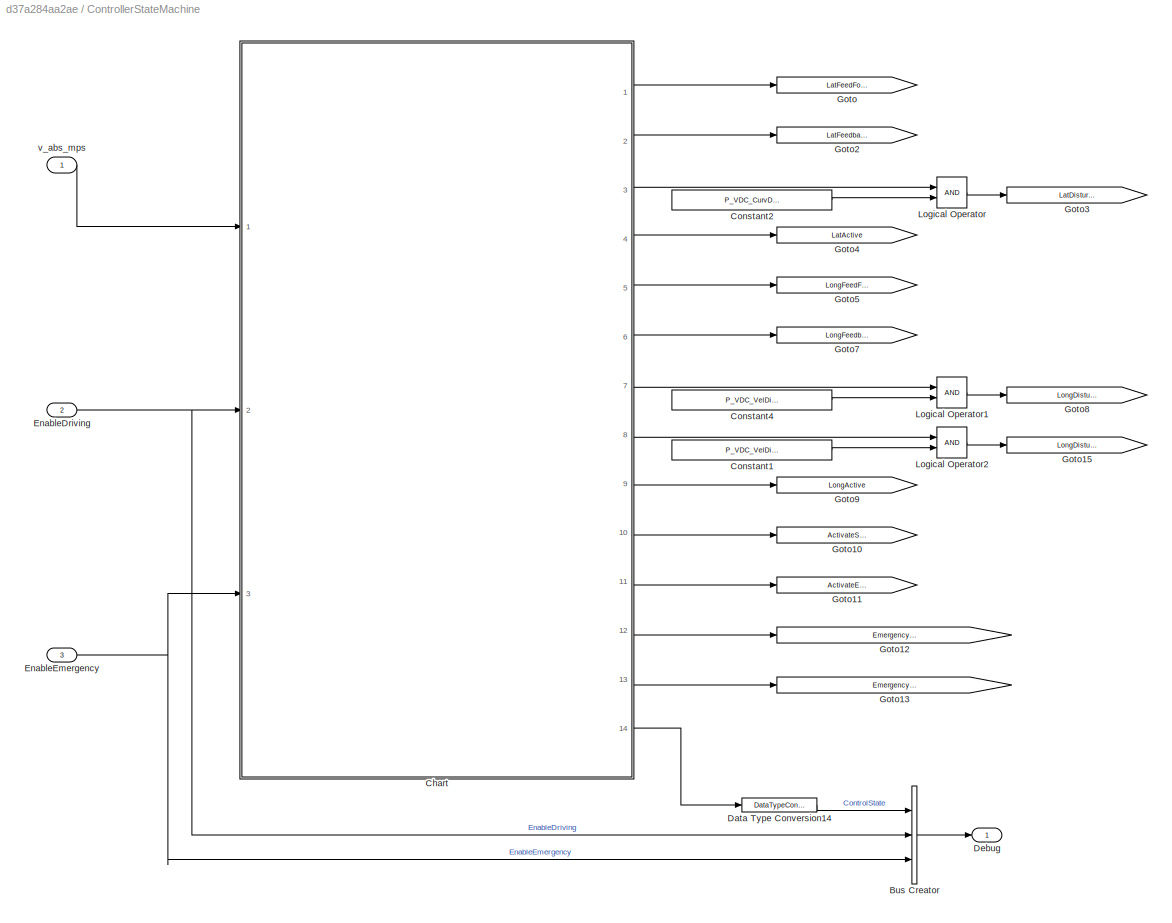
BLOCK [SubSystem] ControllerStateMachine
  Ports = [3, 1]
  RequestExecContextInheritance = off
BLOCK [BusCreator] ControllerStateMachine/Bus Creator
  DisplayOption = bar
  InheritFromInputs = on
  Inputs = 3
  Ports = [3, 1]
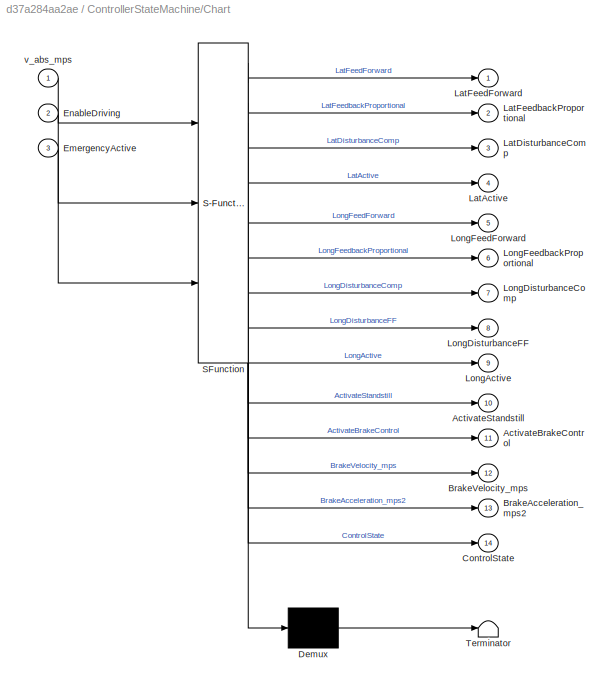
BLOCK [SubSystem] ControllerStateMachine/Chart
  ErrorFcn = Stateflow.Translate.translate
  PermitHierarchicalResolution = ExplicitOnly
  Ports = [3, 14]
  RequestExecContextInheritance = off
  SFBlockType = Chart
  TreatAsAtomicUnit = on
BLOCK [Demux] ControllerStateMachine/Chart/ Demux 
  Outputs = 1
  Ports = [1, 1]
BLOCK [S-Function] ControllerStateMachine/Chart/ SFunction 
  EnableBusSupport = on
  FunctionName = sf_sfun
  Parameters = P_VDC_EmergencyBrakeAcceleration_mps2,P_VDC_FullControlSpeed_mps,P_VDC_SlowControlSpeed_mps,tS
  PortCounts = [3 15]
  Ports = [3, 15]
  SFcnIsStateOwnerBlock = off
  SFunctionDeploymentMode = off
  Tag = Stateflow S-Function mvdc_curvvel_tracking 3
BLOCK [Terminator] ControllerStateMachine/Chart/ Terminator 
BLOCK [Outport] ControllerStateMachine/Chart/ActivateBrakeControl
  IconDisplay = Port number
  Port = 11
BLOCK [Outport] ControllerStateMachine/Chart/ActivateStandstill
  IconDisplay = Port number
  Port = 10
BLOCK [Outport] ControllerStateMachine/Chart/BrakeAcceleration_mps2
  IconDisplay = Port number
  Port = 13
BLOCK [Outport] ControllerStateMachine/Chart/BrakeVelocity_mps
  IconDisplay = Port number
  Port = 12
BLOCK [Outport] ControllerStateMachine/Chart/ControlState
  IconDisplay = Port number
  Port = 14
BLOCK [Inport] ControllerStateMachine/Chart/EmergencyActive
  IconDisplay = Port number
  Port = 3
BLOCK [Inport] ControllerStateMachine/Chart/EnableDriving
  IconDisplay = Port number
  Port = 2
BLOCK [Outport] ControllerStateMachine/Chart/LatActive
  IconDisplay = Port number
  Port = 4
BLOCK [Outport] ControllerStateMachine/Chart/LatDisturbanceComp
  IconDisplay = Port number
  Port = 3
BLOCK [Outport] ControllerStateMachine/Chart/LatFeedForward
  IconDisplay = Port number
BLOCK [Outport] ControllerStateMachine/Chart/LatFeedbackProportional
  IconDisplay = Port number
  Port = 2
BLOCK [Outport] ControllerStateMachine/Chart/LongActive
  IconDisplay = Port number
  Port = 9
BLOCK [Outport] ControllerStateMachine/Chart/LongDisturbanceComp
  IconDisplay = Port number
  Port = 7
BLOCK [Outport] ControllerStateMachine/Chart/LongDisturbanceFF
  IconDisplay = Port number
  Port = 8
BLOCK [Outport] ControllerStateMachine/Chart/LongFeedForward
  IconDisplay = Port number
  Port = 5
BLOCK [Outport] ControllerStateMachine/Chart/LongFeedbackProportional
  IconDisplay = Port number
  Port = 6
BLOCK [Inport] ControllerStateMachine/Chart/v_abs_mps
  IconDisplay = Port number
BLOCK [Constant] ControllerStateMachine/Constant1
  Value = P_VDC_VelDistFFActive
BLOCK [Constant] ControllerStateMachine/Constant2
  Value = P_VDC_CurvDistActive
BLOCK [Constant] ControllerStateMachine/Constant4
  Value = P_VDC_VelDistFBActive
BLOCK [DataTypeConversion] ControllerStateMachine/Data Type Conversion14
  OutDataTypeStr = uint16
  RndMeth = Floor
  SaturateOnIntegerOverflow = off
BLOCK [Outport] ControllerStateMachine/Debug
  IconDisplay = Port number
BLOCK [Inport] ControllerStateMachine/EnableDriving
  IconDisplay = Port number
  Port = 2
BLOCK [Inport] ControllerStateMachine/EnableEmergency
  IconDisplay = Port number
  Port = 3
BLOCK [Goto] ControllerStateMachine/Goto
  GotoTag = LatFeedForward
  TagVisibility = global
BLOCK [Goto] ControllerStateMachine/Goto10
  GotoTag = ActivateStandstill
  TagVisibility = global
BLOCK [Goto] ControllerStateMachine/Goto11
  GotoTag = ActivateEmergencyBrake
  TagVisibility = global
BLOCK [Goto] ControllerStateMachine/Goto12
  GotoTag = EmergencyBrakeVelocity_mps
  TagVisibility = global
BLOCK [Goto] ControllerStateMachine/Goto13
  GotoTag = EmergencyBrakeAcceleration_mps2
  TagVisibility = global
BLOCK [Goto] ControllerStateMachine/Goto15
  GotoTag = LongDisturbanceFF
  TagVisibility = global
BLOCK [Goto] ControllerStateMachine/Goto2
  GotoTag = LatFeedbackProportional
  TagVisibility = global
BLOCK [Goto] ControllerStateMachine/Goto3
  GotoTag = LatDisturbanceComp
  TagVisibility = global
BLOCK [Goto] ControllerStateMachine/Goto4
  GotoTag = LatActive
  TagVisibility = global
BLOCK [Goto] ControllerStateMachine/Goto5
  GotoTag = LongFeedForward
  TagVisibility = global
BLOCK [Goto] ControllerStateMachine/Goto7
  GotoTag = LongFeedbackProportional
  TagVisibility = global
BLOCK [Goto] ControllerStateMachine/Goto8
  GotoTag = LongDisturbanceComp
  TagVisibility = global
BLOCK [Goto] ControllerStateMachine/Goto9
  GotoTag = LongActive
  TagVisibility = global
BLOCK [Logic] ControllerStateMachine/Logical Operator
  AllPortsSameDT = off
  OutDataTypeStr = boolean
  Ports = [2, 1]
BLOCK [Logic] ControllerStateMachine/Logical Operator1
  AllPortsSameDT = off
  OutDataTypeStr = boolean
  Ports = [2, 1]
BLOCK [Logic] ControllerStateMachine/Logical Operator2
  AllPortsSameDT = off
  OutDataTypeStr = boolean
  Ports = [2, 1]
BLOCK [Inport] ControllerStateMachine/v_abs_mps
  IconDisplay = Port number
BLOCK [SubSystem] CreateDebugBus
  Ports = [4, 1]
  RequestExecContextInheritance = off
BLOCK [Inport] CreateDebugBus/ActualVehicleControl
  IconDisplay = Port number
BLOCK [BusCreator] CreateDebugBus/Bus Creator1
  DisplayOption = bar
  InheritFromInputs = on
  Inputs = 20
  Ports = [20, 1]
BLOCK [BusSelector] CreateDebugBus/Bus Selector
  OutputAsBus = off
  OutputSignals = Long_FB_Dist_FxReq_N,Long_FF_Dist_FxReq_N,Long_FB_VelDiff_FxReq_N,Long_FF_Traj_FxReq_N,Long_VelError_mps,Long_TargetSpeed_mps,Long_axTarget_mps2
  Ports = [1, 7]
BLOCK [BusSelector] CreateDebugBus/Bus Selector1
  OutputAsBus = off
  OutputSignals = RequestSteeringAngle_rad,RequestLongForce_N
  Ports = [1, 2]
BLOCK [BusSelector] CreateDebugBus/Bus Selector2
  OutputAsBus = off
  OutputSignals = Curv_TargetAy_mps2,Curv_all_KappaReq_radpm,Curv_FB_Dist_DeltaReq_rad,Curv_FB_Diff_DeltaReq_rad,Curv_FF_Kappa_DeltaReq_rad,Curv_USComp_DeltaReq_rad,Curv_CurvError_radpm,Curv_TargetCurv_radpm
  Ports = [1, 8]
BLOCK [BusSelector] CreateDebugBus/Bus Selector3
  OutputAsBus = off
  OutputSignals = ControlState,EnableDriving,EnableEmergency
  Ports = [1, 3]
BLOCK [Inport] CreateDebugBus/ControllerStateDebug
  IconDisplay = Port number
  Port = 4
BLOCK [Inport] CreateDebugBus/CurvatureDebug
  IconDisplay = Port number
  Port = 2
BLOCK [SignalConversion] CreateDebugBus/Signal Conversion
  OverrideOpt = off
BLOCK [SignalConversion] CreateDebugBus/Signal Conversion1
  OverrideOpt = off
BLOCK [Inport] CreateDebugBus/VelocityControlDebug
  IconDisplay = Port number
  Port = 3
BLOCK [Outport] CreateDebugBus/debug
  IconDisplay = Port number
BLOCK [SubSystem] CurvatureController
  Ports = [4, 2]
  RequestExecContextInheritance = off
BLOCK [Inport] CurvatureController/ActualTrajectoryPoint
  IconDisplay = Port number
BLOCK [Sum] CurvatureController/Add1
  InputSameDT = off
  Inputs = +++
  OutDataTypeStr = Inherit: Inherit via internal rule
  Ports = [3, 1]
  SaturateOnIntegerOverflow = off
BLOCK [BusCreator] CurvatureController/Bus Creator
  DisplayOption = bar
  InheritFromInputs = on
  Inputs = 8
  Ports = [8, 1]
BLOCK [BusSelector] CurvatureController/Bus Selector2
  OutputAsBus = off
  OutputSignals = kappa_radpm,v_mps
  Ports = [1, 2]
BLOCK [BusSelector] CurvatureController/Bus Selector3
  OutputAsBus = off
  OutputSignals = kappa_radpm
  Ports = [1, 1]
BLOCK [Outport] CurvatureController/ControlReq_DeltaOut_rad
  IconDisplay = Port number
  Port = 2
BLOCK [Inport] CurvatureController/ControlRequest
  IconDisplay = Port number
  Port = 4
BLOCK [SubSystem] CurvatureController/DisturbanceFeedback
  Ports = [3, 2]
  RequestExecContextInheritance = off
BLOCK [Inport] CurvatureController/DisturbanceFeedback/ActualVehicleState
  IconDisplay = Port number
  Port = 2
BLOCK [BusSelector] CurvatureController/DisturbanceFeedback/Bus Selector2
  OutputAsBus = off
  OutputSignals = kappa_radpm
  Ports = [1, 1]
BLOCK [Constant] CurvatureController/DisturbanceFeedback/Constant
  Value = 0
BLOCK [Inport] CurvatureController/DisturbanceFeedback/ControlRequest
  IconDisplay = Port number
BLOCK [Outport] CurvatureController/DisturbanceFeedback/Curv_FB_Dist_DeltaReq_rad
  IconDisplay = Port number
BLOCK [Outport] CurvatureController/DisturbanceFeedback/Curv_all_KappaReq_radpm
  IconDisplay = Port number
  Port = 2
BLOCK [SubSystem] CurvatureController/DisturbanceFeedback/Curvature2Delta
  Ports = [1, 1]
  RequestExecContextInheritance = off
BLOCK [Inport] CurvatureController/DisturbanceFeedback/Curvature2Delta/Curvature_radpm
  IconDisplay = Port number
BLOCK [Outport] CurvatureController/DisturbanceFeedback/Curvature2Delta/Delta_rad
  IconDisplay = Port number
BLOCK [Gain] CurvatureController/DisturbanceFeedback/Curvature2Delta/Gain4
  Gain = l_front_m+l_rear_m
  OutDataTypeStr = Inherit: Inherit via internal rule
  ParamDataTypeStr = Inherit: Inherit via internal rule
  SaturateOnIntegerOverflow = off
BLOCK [SubSystem] CurvatureController/DisturbanceFeedback/Delta2Curvature
  Ports = [1, 1]
  RequestExecContextInheritance = off
BLOCK [Outport] CurvatureController/DisturbanceFeedback/Delta2Curvature/Curv_all_KappaReq_radpm
  IconDisplay = Port number
BLOCK [Gain] CurvatureController/DisturbanceFeedback/Delta2Curvature/Gain2
  Gain = 1/(l_front_m+l_rear_m)
  OutDataTypeStr = Inherit: Inherit via internal rule
  ParamDataTypeStr = Inherit: Inherit via internal rule
  SaturateOnIntegerOverflow = off
BLOCK [Inport] CurvatureController/DisturbanceFeedback/Delta2Curvature/actualReq_Delta_radpm
  IconDisplay = Port number
BLOCK [SubSystem] CurvatureController/DisturbanceFeedback/Delta2Curvature1
  Ports = [1, 1]
  RequestExecContextInheritance = off
BLOCK [Outport] CurvatureController/DisturbanceFeedback/Delta2Curvature1/Curv_all_KappaReq_radpm
  IconDisplay = Port number
BLOCK [Gain] CurvatureController/DisturbanceFeedback/Delta2Curvature1/Gain2
  Gain = 1/(l_front_m+l_rear_m)
  OutDataTypeStr = Inherit: Inherit via internal rule
  ParamDataTypeStr = Inherit: Inherit via internal rule
  SaturateOnIntegerOverflow = off
BLOCK [Inport] CurvatureController/DisturbanceFeedback/Delta2Curvature1/actualReq_Delta_radpm
  IconDisplay = Port number
BLOCK [From] CurvatureController/DisturbanceFeedback/From10
  GotoTag = LatDisturbanceComp
  TagVisibility = global
BLOCK [Gain] CurvatureController/DisturbanceFeedback/Gain6
  Gain = -1
  OutDataTypeStr = Inherit: Inherit via internal rule
  ParamDataTypeStr = Inherit: Inherit via internal rule
  SaturateOnIntegerOverflow = off
BLOCK [Inport] CurvatureController/DisturbanceFeedback/SteeringAngle_USComp_rad
  IconDisplay = Port number
  Port = 3
BLOCK [Reference] CurvatureController/DisturbanceFeedback/Subsystem8  REF=misc/Subsystem  (lib defined in slx_2fe3b46eb0ca)
  Ports = [2, 1]
  SourceBlock = misc/Subsystem
BLOCK [Sum] CurvatureController/DisturbanceFeedback/Sum
  IconShape = round
  InputSameDT = off
  Inputs = |-+
  OutDataTypeStr = Inherit: Inherit via internal rule
  Ports = [2, 1]
  SaturateOnIntegerOverflow = off
BLOCK [Sum] CurvatureController/DisturbanceFeedback/Sum1
  IconShape = round
  InputSameDT = off
  Inputs = |+-
  OutDataTypeStr = Inherit: Inherit via internal rule
  Ports = [2, 1]
  SaturateOnIntegerOverflow = off
BLOCK [Switch] CurvatureController/DisturbanceFeedback/Switch
  Criteria = u2 > Threshold
  InputSameDT = off
  SaturateOnIntegerOverflow = off
BLOCK [Reference] CurvatureController/DisturbanceFeedback/Transfer Fcn First Order  REF=simulink/Discrete/Transfer Fcn
First Order
  Ports = [1, 1]
  SourceBlock = simulink/Discrete/Transfer Fcn\nFirst Order
  SourceProductBaseCode = SL
  SourceProductName = Simulink
  SourceType = First Order Transfer Fcn
BLOCK [SubSystem] CurvatureController/FeedForward
  Ports = [5, 2]
  RequestExecContextInheritance = off
BLOCK [Inport] CurvatureController/FeedForward/ActualTrajectoryPoint
  IconDisplay = Port number
  Port = 5
BLOCK [BusSelector] CurvatureController/FeedForward/Bus Selector
  OutputAsBus = off
  OutputSignals = kappa_radpm,EnableDriving
  Ports = [1, 2]
BLOCK [BusSelector] CurvatureController/FeedForward/Bus Selector1
  OutputAsBus = off
  OutputSignals = banking_rad
  Ports = [1, 1]
BLOCK [Constant] CurvatureController/FeedForward/Constant3
  Value = P_VDC_SteeringOvalComp_lqr_rad
BLOCK [Outport] CurvatureController/FeedForward/Curv_FF_Kappa_DeltaReq_rad
  IconDisplay = Port number
  Port = 2
BLOCK [SubSystem] CurvatureController/FeedForward/Curvature2Delta
  Ports = [5, 2]
  RequestExecContextInheritance = off
BLOCK [Inport] CurvatureController/FeedForward/Curvature2Delta/ActualVelocity_mps
  IconDisplay = Port number
  Port = 5
BLOCK [Constant] CurvatureController/FeedForward/Curvature2Delta/Constant
  Value = P_VDC_NonlinCurvDeltaActive_b
BLOCK [Constant] CurvatureController/FeedForward/Curvature2Delta/Constant1
  Value = 0
BLOCK [Inport] CurvatureController/FeedForward/Curvature2Delta/EnableDriving
  IconDisplay = Port number
  Port = 2
BLOCK [SubSystem] CurvatureController/FeedForward/Curvature2Delta/InverseSteadyStateLinearModel
  Ports = [2, 1]
  RequestExecContextInheritance = off
BLOCK [Constant] CurvatureController/FeedForward/Curvature2Delta/InverseSteadyStateLinearModel/Constant3
  Value = P_VDC_UndersteerCompensationActive_b
BLOCK [Inport] CurvatureController/FeedForward/Curvature2Delta/InverseSteadyStateLinearModel/CurvatureRequest
  IconDisplay = Port number
  Port = 2
BLOCK [SubSystem] CurvatureController/FeedForward/Curvature2Delta/InverseSteadyStateLinearModel/NeutralSteer
  Ports = [1, 1]
  RequestExecContextInheritance = off
BLOCK [Inport] CurvatureController/FeedForward/Curvature2Delta/InverseSteadyStateLinearModel/NeutralSteer/CurvatureRequest_radpm
  IconDisplay = Port number
BLOCK [Gain] CurvatureController/FeedForward/Curvature2Delta/InverseSteadyStateLinearModel/NeutralSteer/Gain4
  Gain = l_front_m+l_rear_m
  OutDataTypeStr = Inherit: Inherit via internal rule
  ParamDataTypeStr = Inherit: Inherit via internal rule
  SaturateOnIntegerOverflow = off
BLOCK [Outport] CurvatureController/FeedForward/Curvature2Delta/InverseSteadyStateLinearModel/NeutralSteer/SteeringAngle_rad
  IconDisplay = Port number
BLOCK [Outport] CurvatureController/FeedForward/Curvature2Delta/InverseSteadyStateLinearModel/SteeringAngle_rad
  IconDisplay = Port number
BLOCK [Switch] CurvatureController/FeedForward/Curvature2Delta/InverseSteadyStateLinearModel/Switch1
  Criteria = u2 > Threshold
  InputSameDT = off
  SaturateOnIntegerOverflow = off
BLOCK [SubSystem] CurvatureController/FeedForward/Curvature2Delta/InverseSteadyStateLinearModel/USCompensation_LinearModel
  Ports = [2, 1]
  RequestExecContextInheritance = off
BLOCK [Constant] CurvatureController/FeedForward/Curvature2Delta/InverseSteadyStateLinearModel/USCompensation_LinearModel/Constant1
  Value = P_VDC_UndersteerGradient
BLOCK [Constant] CurvatureController/FeedForward/Curvature2Delta/InverseSteadyStateLinearModel/USCompensation_LinearModel/Constant4
  Value = P_VDC_USCLowPassActive_b
BLOCK [Inport] CurvatureController/FeedForward/Curvature2Delta/InverseSteadyStateLinearModel/USCompensation_LinearModel/CurvatureRequest_radpm
  IconDisplay = Port number
  Port = 2
BLOCK [Product] CurvatureController/FeedForward/Curvature2Delta/InverseSteadyStateLinearModel/USCompensation_LinearModel/Product1
  InputSameDT = off
  Inputs = 3
  OutDataTypeStr = Inherit: Inherit via internal rule
  Ports = [3, 1]
  RndMeth = Floor
  SaturateOnIntegerOverflow = off
BLOCK [Product] CurvatureController/FeedForward/Curvature2Delta/InverseSteadyStateLinearModel/USCompensation_LinearModel/Product2
  InputSameDT = off
  OutDataTypeStr = Inherit: Inherit via internal rule
  Ports = [2, 1]
  RndMeth = Floor
  SaturateOnIntegerOverflow = off
BLOCK [Switch] CurvatureController/FeedForward/Curvature2Delta/InverseSteadyStateLinearModel/USCompensation_LinearModel/Switch2
  Criteria = u2 > Threshold
  InputSameDT = off
  SaturateOnIntegerOverflow = off
BLOCK [Reference] CurvatureController/FeedForward/Curvature2Delta/InverseSteadyStateLinearModel/USCompensation_LinearModel/Transfer Fcn First Order  REF=simulink/Discrete/Transfer Fcn
First Order
  Ports = [1, 1]
  SourceBlock = simulink/Discrete/Transfer Fcn\nFirst Order
  SourceProductBaseCode = SL
  SourceProductName = Simulink
  SourceType = First Order Transfer Fcn
BLOCK [Outport] CurvatureController/FeedForward/Curvature2Delta/InverseSteadyStateLinearModel/USCompensation_LinearModel/USComp_SteeringAngle_rad
  IconDisplay = Port number
BLOCK [Inport] CurvatureController/FeedForward/Curvature2Delta/InverseSteadyStateLinearModel/USCompensation_LinearModel/VehicleVelocity_mps
  IconDisplay = Port number
BLOCK [Inport] CurvatureController/FeedForward/Curvature2Delta/InverseSteadyStateLinearModel/VehicleVelocity_mps
  IconDisplay = Port number
BLOCK [SubSystem] CurvatureController/FeedForward/Curvature2Delta/InverseSteadyStateNonlinearModel
  Ports = [4, 2, 1]
  RequestExecContextInheritance = off
BLOCK [Inport] CurvatureController/FeedForward/Curvature2Delta/InverseSteadyStateNonlinearModel/CurvatureRequest_radpm
  IconDisplay = Port number
  Port = 2
BLOCK [EnablePort] CurvatureController/FeedForward/Curvature2Delta/InverseSteadyStateNonlinearModel/Enable
  Ports = []
BLOCK [Gain] CurvatureController/FeedForward/Curvature2Delta/InverseSteadyStateNonlinearModel/Gain4
  Gain = l_front_m+l_rear_m
  OutDataTypeStr = Inherit: Inherit via internal rule
  ParamDataTypeStr = Inherit: Inherit via internal rule
  SaturateOnIntegerOverflow = off
BLOCK [SubSystem] CurvatureController/FeedForward/Curvature2Delta/InverseSteadyStateNonlinearModel/MATLAB Function
  ErrorFcn = Stateflow.Translate.translate
  PermitHierarchicalResolution = ExplicitOnly
  Ports = [4, 1]
  RequestExecContextInheritance = off
  SFBlockType = MATLAB Function
  TreatAsAtomicUnit = on
BLOCK [Demux] CurvatureController/FeedForward/Curvature2Delta/InverseSteadyStateNonlinearModel/MATLAB Function/ Demux 
  Outputs = 1
  Ports = [1, 1]
BLOCK [S-Function] CurvatureController/FeedForward/Curvature2Delta/InverseSteadyStateNonlinearModel/MATLAB Function/ SFunction 
  EnableBusSupport = on
  FunctionName = sf_sfun
  Parameters = P_VDC_MinVelSlipCalc_mps,P_VDC_SCLearn_FilterCoeff,P_VDC_SCLearn_KappaMax_radpm,P_VDC_SCLearn_LengthScales,P_VDC_SCLearn_Sigma,P_VDC_SCPreload_Delta,P_VDC_SCPreload_Kappa,P_VDC_SCPreload_Vel,P_VDC_UsePreloadedSC,P_VDC_VelCon_vMaxStatic_mps,l_front_m,l_rear_m
  PortCounts = [4 2]
  Ports = [4, 2]
  SFcnIsStateOwnerBlock = off
  SFunctionDeploymentMode = off
  Tag = Stateflow S-Function mvdc_curvvel_tracking 2
BLOCK [Terminator] CurvatureController/FeedForward/Curvature2Delta/InverseSteadyStateNonlinearModel/MATLAB Function/ Terminator 
BLOCK [Inport] CurvatureController/FeedForward/Curvature2Delta/InverseSteadyStateNonlinearModel/MATLAB Function/CurvatureActual_radpm
  IconDisplay = Port number
  Port = 4
BLOCK [Inport] CurvatureController/FeedForward/Curvature2Delta/InverseSteadyStateNonlinearModel/MATLAB Function/CurvatureRequest_radpm
  IconDisplay = Port number
BLOCK [Outport] CurvatureController/FeedForward/Curvature2Delta/InverseSteadyStateNonlinearModel/MATLAB Function/SteeringAngle_FF
  IconDisplay = Port number
BLOCK [Inport] CurvatureController/FeedForward/Curvature2Delta/InverseSteadyStateNonlinearModel/MATLAB Function/SteeringRequest_rad
  IconDisplay = Port number
  Port = 3
BLOCK [Inport] CurvatureController/FeedForward/Curvature2Delta/InverseSteadyStateNonlinearModel/MATLAB Function/VehicleVelocity_mps
  IconDisplay = Port number
  Port = 2
BLOCK [Outport] CurvatureController/FeedForward/Curvature2Delta/InverseSteadyStateNonlinearModel/SteeringAngle_USComp_rad
  IconDisplay = Port number
BLOCK [Outport] CurvatureController/FeedForward/Curvature2Delta/InverseSteadyStateNonlinearModel/SteeringAngle_rad
  IconDisplay = Port number
  Port = 2
BLOCK [Sum] CurvatureController/FeedForward/Curvature2Delta/InverseSteadyStateNonlinearModel/Sum
  IconShape = round
  InputSameDT = off
  Inputs = ++|
  OutDataTypeStr = Inherit: Inherit via internal rule
  Ports = [2, 1]
  SaturateOnIntegerOverflow = off
BLOCK [Reference] CurvatureController/FeedForward/Curvature2Delta/InverseSteadyStateNonlinearModel/Transfer Fcn First Order  REF=simulink/Discrete/Transfer Fcn
First Order
  Ports = [1, 1]
  SourceBlock = simulink/Discrete/Transfer Fcn\nFirst Order
  SourceProductBaseCode = SL
  SourceProductName = Simulink
  SourceType = First Order Transfer Fcn
BLOCK [Inport] CurvatureController/FeedForward/Curvature2Delta/InverseSteadyStateNonlinearModel/VehicleVelocity_mps
  IconDisplay = Port number
BLOCK [Inport] CurvatureController/FeedForward/Curvature2Delta/InverseSteadyStateNonlinearModel/delta_SteeringRequest_rad
  IconDisplay = Port number
  Port = 3
BLOCK [Inport] CurvatureController/FeedForward/Curvature2Delta/InverseSteadyStateNonlinearModel/kappa_radpm
  IconDisplay = Port number
  Port = 4
BLOCK [Logic] CurvatureController/FeedForward/Curvature2Delta/Logical Operator
  AllPortsSameDT = off
  OutDataTypeStr = boolean
  Ports = [2, 1]
BLOCK [Outport] CurvatureController/FeedForward/Curvature2Delta/SteeringAngle_USComp_rad
  IconDisplay = Port number
  Port = 2
BLOCK [Outport] CurvatureController/FeedForward/Curvature2Delta/SteeringAngle_rad
  IconDisplay = Port number
BLOCK [Switch] CurvatureController/FeedForward/Curvature2Delta/Switch
  Criteria = u2 > Threshold
  InputSameDT = off
  SaturateOnIntegerOverflow = off
BLOCK [Switch] CurvatureController/FeedForward/Curvature2Delta/Switch1
  Criteria = u2 > Threshold
  InputSameDT = off
  SaturateOnIntegerOverflow = off
BLOCK [Inport] CurvatureController/FeedForward/Curvature2Delta/TargetCurvature_radpm
  IconDisplay = Port number
BLOCK [Inport] CurvatureController/FeedForward/Curvature2Delta/delta_SteeringRequest_rad
  IconDisplay = Port number
  Port = 3
BLOCK [Inport] CurvatureController/FeedForward/Curvature2Delta/kappa_radpm
  IconDisplay = Port number
  Port = 4
BLOCK [From] CurvatureController/FeedForward/From9
  GotoTag = LatFeedForward
  TagVisibility = global
BLOCK [Product] CurvatureController/FeedForward/Multiply2
  InputSameDT = off
  OutDataTypeStr = Inherit: Inherit via internal rule
  Ports = [2, 1]
  RndMeth = Floor
  SaturateOnIntegerOverflow = off
BLOCK [Trigonometry] CurvatureController/FeedForward/Sin1
  Operator = cos
  Ports = [1, 1]
BLOCK [Outport] CurvatureController/FeedForward/SteeringAngle_USComp_rad
  IconDisplay = Port number
BLOCK [Reference] CurvatureController/FeedForward/Subsystem7  REF=misc/Subsystem  (lib defined in slx_2fe3b46eb0ca)
  Ports = [2, 1]
  SourceBlock = misc/Subsystem
BLOCK [Sum] CurvatureController/FeedForward/Sum
  IconShape = round
  InputSameDT = off
  Inputs = ++|
  OutDataTypeStr = Inherit: Inherit via internal rule
  Ports = [2, 1]
  SaturateOnIntegerOverflow = off
BLOCK [Inport] CurvatureController/FeedForward/TargetValues
  IconDisplay = Port number
BLOCK [Inport] CurvatureController/FeedForward/VehicleVelocity_mps
  IconDisplay = Port number
  Port = 4
BLOCK [Inport] CurvatureController/FeedForward/delta_SteeringRequest_rad
  IconDisplay = Port number
  Port = 2
BLOCK [Inport] CurvatureController/FeedForward/kappa_radpm
  IconDisplay = Port number
  Port = 3
BLOCK [Product] CurvatureController/Product
  InputSameDT = off
  Inputs = 3
  OutDataTypeStr = Inherit: Inherit via internal rule
  Ports = [3, 1]
  RndMeth = Floor
  SaturateOnIntegerOverflow = off
BLOCK [SubSystem] CurvatureController/ProportionalFeedback
  Ports = [1, 1]
  RequestExecContextInheritance = off
BLOCK [Inport] CurvatureController/ProportionalFeedback/Curv_CurvError_radpm
  IconDisplay = Port number
BLOCK [Outport] CurvatureController/ProportionalFeedback/Curv_FB_Diff_DeltaReq_rad
  IconDisplay = Port number
BLOCK [From] CurvatureController/ProportionalFeedback/From11
  GotoTag = LatFeedbackProportional
  TagVisibility = global
BLOCK [Gain] CurvatureController/ProportionalFeedback/Gain3
  Gain = P_VDC_CurvKp
  OutDataTypeStr = Inherit: Inherit via internal rule
  ParamDataTypeStr = Inherit: Inherit via internal rule
  SaturateOnIntegerOverflow = off
BLOCK [Reference] CurvatureController/ProportionalFeedback/Subsystem9  REF=misc/Subsystem  (lib defined in slx_2fe3b46eb0ca)
  Ports = [2, 1]
  SourceBlock = misc/Subsystem
BLOCK [SignalConversion] CurvatureController/Signal Conversion1
  OverrideOpt = off
BLOCK [SignalConversion] CurvatureController/Signal Conversion3
  OverrideOpt = off
BLOCK [Sum] CurvatureController/Sum4
  IconShape = round
  InputSameDT = off
  Inputs = |+-
  OutDataTypeStr = Inherit: Inherit via internal rule
  Ports = [2, 1]
  SaturateOnIntegerOverflow = off
BLOCK [Inport] CurvatureController/TargetValuesVehicle
  IconDisplay = Port number
  Port = 3
BLOCK [Inport] CurvatureController/actualVehicleState
  IconDisplay = Port number
  Port = 2
BLOCK [Outport] CurvatureController/debug
  IconDisplay = Port number
BLOCK [Outport] Debug
  BusOutputAsStruct = on
  IconDisplay = Port number
  OutDataTypeStr = Bus: mvdc_curvvel_tracking_debug
  Port = 3
BLOCK [Outport] RequestLongForce_N
  BusOutputAsStruct = on
  IconDisplay = Port number
  Port = 2
BLOCK [Outport] RequestSteeringAngle_rad
  BusOutputAsStruct = on
  IconDisplay = Port number
BLOCK [Inport] TargetValues
  BusOutputAsStruct = on
  IconDisplay = Port number
  OutDataTypeStr = Bus: TargetValuesVehicleDynamics
  Port = 3
  PortDimensions = 1
BLOCK [Inport] VehicleDynamicState
  IconDisplay = Port number
  OutDataTypeStr = Bus: VehicleDynamicState
  Port = 2
BLOCK [SubSystem] VelocityController
  Ports = [3, 2]
  RequestExecContextInheritance = off
BLOCK [BusSelector] VelocityController/Bus Selector
  OutputAsBus = off
  OutputSignals = v_mps
  Ports = [1, 1]
BLOCK [SubSystem] VelocityController/CalculateTargetAx
  Ports = [2, 2]
  RequestExecContextInheritance = off
BLOCK [Inport] VelocityController/CalculateTargetAx/ActualVelocity_mps
  IconDisplay = Port number
  Port = 2
BLOCK [Sum] VelocityController/CalculateTargetAx/Add
  InputSameDT = off
  OutDataTypeStr = Inherit: Inherit via internal rule
  Ports = [2, 1]
  SaturateOnIntegerOverflow = off
BLOCK [SubSystem] VelocityController/CalculateTargetAx/CalcTargetVelocity
  Ports = [1, 1]
  RequestExecContextInheritance = off
BLOCK [BusSelector] VelocityController/CalculateTargetAx/CalcTargetVelocity/Bus Selector1
  OutputAsBus = off
  OutputSignals = v_mps
  Ports = [1, 1]
BLOCK [From] VelocityController/CalculateTargetAx/CalcTargetVelocity/From16
  GotoTag = ActivateEmergencyBrake
  TagVisibility = global
BLOCK [From] VelocityController/CalculateTargetAx/CalcTargetVelocity/From17
  GotoTag = EmergencyBrakeVelocity_mps
  TagVisibility = global
BLOCK [Outport] VelocityController/CalculateTargetAx/CalcTargetVelocity/Long_TargetSpeed_mps
  IconDisplay = Port number
BLOCK [Saturate] VelocityController/CalculateTargetAx/CalcTargetVelocity/Saturation
  InputPortMap = u0
  LowerLimit = 0
  Ports = [1, 1]
  UpperLimit = P_VDC_VelCon_vMaxStatic_mps
BLOCK [Switch] VelocityController/CalculateTargetAx/CalcTargetVelocity/Switch5
  Criteria = u2 ~= 0
  InputSameDT = off
  SaturateOnIntegerOverflow = off
BLOCK [Inport] VelocityController/CalculateTargetAx/CalcTargetVelocity/TargetValues
  IconDisplay = Port number
BLOCK [SubSystem] VelocityController/CalculateTargetAx/FeedForward
  Ports = [1, 1]
  RequestExecContextInheritance = off
BLOCK [BusSelector] VelocityController/CalculateTargetAx/FeedForward/Bus Selector
  OutputAsBus = off
  OutputSignals = ax_mps2
  Ports = [1, 1]
BLOCK [From] VelocityController/CalculateTargetAx/FeedForward/From16
  GotoTag = ActivateEmergencyBrake
  TagVisibility = global
BLOCK [From] VelocityController/CalculateTargetAx/FeedForward/From18
  GotoTag = EmergencyBrakeAcceleration_mps2
  TagVisibility = global
BLOCK [From] VelocityController/CalculateTargetAx/FeedForward/From7
  GotoTag = LongFeedForward
  TagVisibility = global
BLOCK [Gain] VelocityController/CalculateTargetAx/FeedForward/Gain3
  Gain = vehiclemass_kg
  OutDataTypeStr = Inherit: Inherit via internal rule
  ParamDataTypeStr = Inherit: Inherit via internal rule
  SaturateOnIntegerOverflow = off
BLOCK [Outport] VelocityController/CalculateTargetAx/FeedForward/Long_FF_Traj_FxReq_N
  IconDisplay = Port number
BLOCK [Reference] VelocityController/CalculateTargetAx/FeedForward/Subsystem4  REF=misc/Subsystem  (lib defined in slx_2fe3b46eb0ca)
  Ports = [2, 1]
  SourceBlock = misc/Subsystem
BLOCK [Switch] VelocityController/CalculateTargetAx/FeedForward/Switch6
  Criteria = u2 ~= 0
  InputSameDT = off
  SaturateOnIntegerOverflow = off
BLOCK [Inport] VelocityController/CalculateTargetAx/FeedForward/TargetValues
  IconDisplay = Port number
BLOCK [Gain] VelocityController/CalculateTargetAx/Gain15
  Gain = 1/vehiclemass_kg
  OutDataTypeStr = Inherit: Inherit via internal rule
  ParamDataTypeStr = Inherit: Inherit via internal rule
  SaturateOnIntegerOverflow = off
BLOCK [Mux] VelocityController/CalculateTargetAx/Mux
  DisplayOption = bar
  Inputs = 5
  Ports = [5, 1]
BLOCK [SubSystem] VelocityController/CalculateTargetAx/ProportionalFeedback
  Ports = [1, 1]
  RequestExecContextInheritance = off
BLOCK [From] VelocityController/CalculateTargetAx/ProportionalFeedback/From5
  GotoTag = LongFeedbackProportional
  TagVisibility = global
BLOCK [Gain] VelocityController/CalculateTargetAx/ProportionalFeedback/Gain1
  Gain = P_VDC_LongKp
  OutDataTypeStr = Inherit: Inherit via internal rule
  ParamDataTypeStr = Inherit: Inherit via internal rule
  SaturateOnIntegerOverflow = off
BLOCK [Outport] VelocityController/CalculateTargetAx/ProportionalFeedback/Long_FB_VelDiff_FxReq_N
  IconDisplay = Port number
BLOCK [Inport] VelocityController/CalculateTargetAx/ProportionalFeedback/Long_VelError_mps
  IconDisplay = Port number
BLOCK [Reference] VelocityController/CalculateTargetAx/ProportionalFeedback/Subsystem3  REF=misc/Subsystem  (lib defined in slx_2fe3b46eb0ca)
  Ports = [2, 1]
  SourceBlock = misc/Subsystem
BLOCK [Sum] VelocityController/CalculateTargetAx/Sum2
  IconShape = round
  InputSameDT = off
  Inputs = |+-
  OutDataTypeStr = Inherit: Inherit via internal rule
  Ports = [2, 1]
  SaturateOnIntegerOverflow = off
BLOCK [Inport] VelocityController/CalculateTargetAx/TargetValues
  IconDisplay = Port number
BLOCK [Outport] VelocityController/CalculateTargetAx/ax_TargetAccX_mps2
  IconDisplay = Port number
  Port = 2
BLOCK [Outport] VelocityController/CalculateTargetAx/debug
  IconDisplay = Port number
BLOCK [Inport] VelocityController/ControlRequest
  IconDisplay = Port number
  Port = 3
BLOCK [SubSystem] VelocityController/CreateDebugBus
  Ports = [2, 1]
  RequestExecContextInheritance = off
BLOCK [BusCreator] VelocityController/CreateDebugBus/Bus Creator
  DisplayOption = bar
  InheritFromInputs = on
  Inputs = 7
  Ports = [7, 1]
BLOCK [Inport] VelocityController/CreateDebugBus/CalcAxTargetDebug
  IconDisplay = Port number
BLOCK [Demux] VelocityController/CreateDebugBus/Demux
  DisplayOption = bar
  Outputs = 5
  Ports = [1, 5]
BLOCK [Demux] VelocityController/CreateDebugBus/Demux1
  DisplayOption = bar
  Outputs = 2
  Ports = [1, 2]
BLOCK [Inport] VelocityController/CreateDebugBus/DisturbanceCompensationDebug
  IconDisplay = Port number
  Port = 2
BLOCK [Outport] VelocityController/CreateDebugBus/debug
  IconDisplay = Port number
BLOCK [SubSystem] VelocityController/DisturbanceCompensation
  Ports = [3, 2]
  RequestExecContextInheritance = off
BLOCK [Sum] VelocityController/DisturbanceCompensation/Add1
  InputSameDT = off
  Inputs = +++
  OutDataTypeStr = Inherit: Inherit via internal rule
  Ports = [3, 1]
  SaturateOnIntegerOverflow = off
BLOCK [Inport] VelocityController/DisturbanceCompensation/ControlRequest
  IconDisplay = Port number
  Port = 2
BLOCK [SubSystem] VelocityController/DisturbanceCompensation/DisturbanceFeedForward
  Ports = [2, 1]
  RequestExecContextInheritance = off
BLOCK [Sum] VelocityController/DisturbanceCompensation/DisturbanceFeedForward/Add2
  InputSameDT = off
  Inputs = +++
  OutDataTypeStr = Inherit: Inherit via internal rule
  Ports = [3, 1]
  SaturateOnIntegerOverflow = off
BLOCK [From] VelocityController/DisturbanceCompensation/DisturbanceFeedForward/From2
  GotoTag = LongDisturbanceFF
  TagVisibility = global
BLOCK [Gain] VelocityController/DisturbanceCompensation/DisturbanceFeedForward/Gain10
  Gain = WheelInertia_Front_kgm2
  OutDataTypeStr = Inherit: Inherit via internal rule
  ParamDataTypeStr = Inherit: Inherit via internal rule
  SaturateOnIntegerOverflow = off
BLOCK [Gain] VelocityController/DisturbanceCompensation/DisturbanceFeedForward/Gain11
  Gain = WheelInertia_Rear_kgm2
  OutDataTypeStr = Inherit: Inherit via internal rule
  ParamDataTypeStr = Inherit: Inherit via internal rule
  SaturateOnIntegerOverflow = off
BLOCK [Gain] VelocityController/DisturbanceCompensation/DisturbanceFeedForward/Gain13
  Gain = 1/tyreradius_front_m^2
  OutDataTypeStr = Inherit: Inherit via internal rule
  ParamDataTypeStr = Inherit: Inherit via internal rule
  SaturateOnIntegerOverflow = off
BLOCK [Gain] VelocityController/DisturbanceCompensation/DisturbanceFeedForward/Gain14
  Gain = 1/tyreradius_rear_m^2
  OutDataTypeStr = Inherit: Inherit via internal rule
  ParamDataTypeStr = Inherit: Inherit via internal rule
  SaturateOnIntegerOverflow = off
BLOCK [Gain] VelocityController/DisturbanceCompensation/DisturbanceFeedForward/Gain16
  Gain = 2
  OutDataTypeStr = Inherit: Inherit via internal rule
  ParamDataTypeStr = Inherit: Inherit via internal rule
  SaturateOnIntegerOverflow = off
BLOCK [Gain] VelocityController/DisturbanceCompensation/DisturbanceFeedForward/Gain17
  Gain = 2
  OutDataTypeStr = Inherit: Inherit via internal rule
  ParamDataTypeStr = Inherit: Inherit via internal rule
  SaturateOnIntegerOverflow = off
BLOCK [Gain] VelocityController/DisturbanceCompensation/DisturbanceFeedForward/Gain6
  Gain = drag_coefficient
  OutDataTypeStr = Inherit: Inherit via internal rule
  ParamDataTypeStr = Inherit: Inherit via internal rule
  SaturateOnIntegerOverflow = off
BLOCK [Gain] VelocityController/DisturbanceCompensation/DisturbanceFeedForward/Gain7
  Gain = A_VehicleReference_m2
  OutDataTypeStr = Inherit: Inherit via internal rule
  ParamDataTypeStr = Inherit: Inherit via internal rule
  SaturateOnIntegerOverflow = off
BLOCK [Gain] VelocityController/DisturbanceCompensation/DisturbanceFeedForward/Gain8
  Gain = roh_air
  OutDataTypeStr = Inherit: Inherit via internal rule
  ParamDataTypeStr = Inherit: Inherit via internal rule
  SaturateOnIntegerOverflow = off
BLOCK [Gain] VelocityController/DisturbanceCompensation/DisturbanceFeedForward/Gain9
  Gain = 0.5
  OutDataTypeStr = Inherit: Inherit via internal rule
  ParamDataTypeStr = Inherit: Inherit via internal rule
  SaturateOnIntegerOverflow = off
BLOCK [Outport] VelocityController/DisturbanceCompensation/DisturbanceFeedForward/Long_FF_Dist_FxReq_N
  IconDisplay = Port number
BLOCK [Product] VelocityController/DisturbanceCompensation/DisturbanceFeedForward/Product
  InputSameDT = off
  OutDataTypeStr = Inherit: Inherit via internal rule
  Ports = [2, 1]
  RndMeth = Floor
  SaturateOnIntegerOverflow = off
BLOCK [Reference] VelocityController/DisturbanceCompensation/DisturbanceFeedForward/Subsystem1  REF=misc/Subsystem  (lib defined in slx_2fe3b46eb0ca)
  Ports = [2, 1]
  SourceBlock = misc/Subsystem
BLOCK [Inport] VelocityController/DisturbanceCompensation/DisturbanceFeedForward/VehicleVelocity_mps
  IconDisplay = Port number
  Port = 2
BLOCK [Inport] VelocityController/DisturbanceCompensation/DisturbanceFeedForward/ax_TargetAccX_mps2
  IconDisplay = Port number
BLOCK [SubSystem] VelocityController/DisturbanceCompensation/DisturbanceFeedback
  Ports = [3, 1]
  RequestExecContextInheritance = off
BLOCK [Constant] VelocityController/DisturbanceCompensation/DisturbanceFeedback/Constant
  Value = 0
BLOCK [Inport] VelocityController/DisturbanceCompensation/DisturbanceFeedback/ControlRequest
  IconDisplay = Port number
  Port = 2
BLOCK [Reference] VelocityController/DisturbanceCompensation/DisturbanceFeedback/Discrete Derivative  REF=simulink/Discrete/Discrete Derivative
  Ports = [1, 1]
  SourceBlock = simulink/Discrete/Discrete Derivative
  SourceProductBaseCode = SL
  SourceProductName = Simulink
  SourceType = Discrete Derivative
BLOCK [Inport] VelocityController/DisturbanceCompensation/DisturbanceFeedback/DisturbanceFeedForward
  IconDisplay = Port number
BLOCK [From] VelocityController/DisturbanceCompensation/DisturbanceFeedback/From1
  GotoTag = LongDisturbanceComp
  TagVisibility = global
BLOCK [Gain] VelocityController/DisturbanceCompensation/DisturbanceFeedback/Gain
  Gain = 1/vehiclemass_kg
  OutDataTypeStr = Inherit: Inherit via internal rule
  ParamDataTypeStr = Inherit: Inherit via internal rule
  SaturateOnIntegerOverflow = off
BLOCK [Gain] VelocityController/DisturbanceCompensation/DisturbanceFeedback/Gain4
  Gain = vehiclemass_kg
  OutDataTypeStr = Inherit: Inherit via internal rule
  ParamDataTypeStr = Inherit: Inherit via internal rule
  SaturateOnIntegerOverflow = off
BLOCK [Outport] VelocityController/DisturbanceCompensation/DisturbanceFeedback/Long_FB_Dist_FxReq_N
  IconDisplay = Port number
BLOCK [Reference] VelocityController/DisturbanceCompensation/DisturbanceFeedback/Subsystem5  REF=misc/Subsystem  (lib defined in slx_2fe3b46eb0ca)
  Ports = [2, 1]
  SourceBlock = misc/Subsystem
BLOCK [Sum] VelocityController/DisturbanceCompensation/DisturbanceFeedback/Sum
  IconShape = round
  InputSameDT = off
  Inputs = |-+
  OutDataTypeStr = Inherit: Inherit via internal rule
  Ports = [2, 1]
  SaturateOnIntegerOverflow = off
BLOCK [Sum] VelocityController/DisturbanceCompensation/DisturbanceFeedback/Sum1
  IconShape = round
  InputSameDT = off
  Inputs = -+|
  OutDataTypeStr = Inherit: Inherit via internal rule
  Ports = [2, 1]
  SaturateOnIntegerOverflow = off
BLOCK [Switch] VelocityController/DisturbanceCompensation/DisturbanceFeedback/Switch
  Criteria = u2 > Threshold
  InputSameDT = off
  SaturateOnIntegerOverflow = off
BLOCK [Reference] VelocityController/DisturbanceCompensation/DisturbanceFeedback/Transfer Fcn First Order  REF=simulink/Discrete/Transfer Fcn
First Order
  Ports = [1, 1]
  SourceBlock = simulink/Discrete/Transfer Fcn\nFirst Order
  SourceProductBaseCode = SL
  SourceProductName = Simulink
  SourceType = First Order Transfer Fcn
BLOCK [Inport] VelocityController/DisturbanceCompensation/DisturbanceFeedback/VehicleVelocity_mps
  IconDisplay = Port number
  Port = 3
BLOCK [Outport] VelocityController/DisturbanceCompensation/Fx_ForceRequestRaw_N
  IconDisplay = Port number
  Port = 2
BLOCK [Gain] VelocityController/DisturbanceCompensation/Gain15
  Gain = vehiclemass_kg
  OutDataTypeStr = Inherit: Inherit via internal rule
  ParamDataTypeStr = Inherit: Inherit via internal rule
  SaturateOnIntegerOverflow = off
BLOCK [Mux] VelocityController/DisturbanceCompensation/Mux
  DisplayOption = bar
  Inputs = 2
  Ports = [2, 1]
BLOCK [Inport] VelocityController/DisturbanceCompensation/ax_TargetAccX_mps2
  IconDisplay = Port number
BLOCK [Outport] VelocityController/DisturbanceCompensation/debug
  IconDisplay = Port number
BLOCK [Inport] VelocityController/DisturbanceCompensation/v_VehicleVelocity_mps
  IconDisplay = Port number
  Port = 3
BLOCK [Outport] VelocityController/LongControl_Request_Fx_N
  IconDisplay = Port number
  Port = 2
BLOCK [Inport] VelocityController/TargetValuesVehicle
  IconDisplay = Port number
  Port = 2
BLOCK [SubSystem] VelocityController/VelocityLimitation
  Ports = [2, 1]
  RequestExecContextInheritance = off
BLOCK [Reference] VelocityController/VelocityLimitation/Compare To Zero  REF=simulink/Logic and Bit
Operations/Compare
To Zero
  Ports = [1, 1]
  SourceBlock = simulink/Logic and Bit\nOperations/Compare\nTo Zero
  SourceProductBaseCode = SL
  SourceProductName = Simulink
  SourceType = Compare To Zero
BLOCK [Constant] VelocityController/VelocityLimitation/Constant1
  Value = P_VDC_VelCon_vMaxStatic_mps
BLOCK [Outport] VelocityController/VelocityLimitation/Fx_ForceRequestFinal_N
  IconDisplay = Port number
BLOCK [Inport] VelocityController/VelocityLimitation/Fx_ForceRequestRaw_N
  IconDisplay = Port number
BLOCK [Saturate] VelocityController/VelocityLimitation/Saturation
  InputPortMap = u0
  LowerLimit = -inf
  Ports = [1, 1]
  UpperLimit = 0
BLOCK [Sum] VelocityController/VelocityLimitation/Sum3
  IconShape = round
  InputSameDT = off
  Inputs = -+|
  OutDataTypeStr = Inherit: Inherit via internal rule
  Ports = [2, 1]
  SaturateOnIntegerOverflow = off
BLOCK [Switch] VelocityController/VelocityLimitation/Switch1
  Criteria = u2 > Threshold
  InputSameDT = off
  SaturateOnIntegerOverflow = off
BLOCK [Inport] VelocityController/VelocityLimitation/v_ActualVelocity_mps
  IconDisplay = Port number
  Port = 2
BLOCK [Inport] VelocityController/actualVehicleState
  IconDisplay = Port number
BLOCK [Outport] VelocityController/debug
  IconDisplay = Port number
ANNOTATION (root): Author: Alexander Wischnewski (<email>) Chair of Automatic Control at TU Munich Description: Implements a VelocityController and a CurvatureController for an autonomous race car. Both use a P-like controller feedback combined with a disturbance estimator, which leads to an overall PI-like behavior. However, the disturbance estimator implementation has some advantages in terms of tuning and saturat...<+745ch>
ANNOTATION CurvatureController: The curvature tracking controller can be divided into three main parts: The ProportionalFeedback block implements a P-controller like feedback. This helps stabilizing unintendend curvature deviations fastly. DisturbanceFeedback estimates a disturbance curvature based on the relation between steering angle and ideally resulting curvature. This is used to create a corrective steering angle, e.g. sta...<+152ch>
ANNOTATION CurvatureController/DisturbanceFeedback: This subsystem implements the curvature disturbance estimation and calculates the corrective steering angle from this. The DisturbanceObserverCurvature calculates a disturbance curvature based on the current steering angle request and the corresponding expected ideal curvature response of the vehicle. The latter is calculated in the Delta2Curvature block. The disturbance estimate is used in Curvat...<+91ch>
ANNOTATION CurvatureController/FeedForward: The steering feedforward is calculated based on the curvature setpoint using a neutral steer assumption and a learned feed forward part.
ANNOTATION CurvatureController/FeedForward/Curvature2Delta: There are two main variants to calculate the feedforward steering angle based on the target curvature: The top option uses an inverse nonlinear steady state characteristic of the vehicle to calculate the necessary steering angle for the required target curvature at a certain speed. This characteristic is adapted online to the current operating point of the vehicle. The bottom option uses a the inv...<+205ch>
ANNOTATION VelocityController: The velocity tracking controller has three main steps: In CalculateTargetAx the desired longitudinal acceleration is calculated based on a feedforward control law and a proportional feedback controller. The DisturbanceCompensation accounts for external influences like aerodynamic drag but also estimates unknown disturbance forces and compensates them to achieve the desired acceleration. Finally, a...<+31ch>
ANNOTATION VelocityController/CalculateTargetAx: This part of the velocity controller is designed based on a single integrator model. FeedForward is used to eliminate the influence from changing velocity setpoints based on the external acceleration setpoint. ProportionalFeedback helps to stabilize the velocity setpoint asymptotically. For a single integrator this is always stable for positive feedback gains.
ANNOTATION VelocityController/DisturbanceCompensation: This part of the velocity controller accounts for external forces acting on the vehicle and violating the model assumption of a single integrator. DisturbanceFeedForward compensates known external forces like aerodynamic drag. DisturbanceFeedback estimates unknown disturbance forces acting on the vehicle and compensates for them. This leads to the overall controller having a PI-like behavior.
ANNOTATION VelocityController/DisturbanceCompensation/DisturbanceFeedForward: Known Disturbance Compensation This subsystem calculates two compensation forces based on the current acceleration request and the vehicle velocity. The first (top row) compensates for the drag forces acting on the vehicle. The second one compensates for the torque necessary to accelerate the wheels such that the current wheelslip stays constant.
ANNOTATION VelocityController/DisturbanceCompensation/DisturbanceFeedback: Unknown disturbance estimation This subsystem calculates an estimate of external forces acting as a disturbance on the control system. This is done via differentiation of the velocity estimate, comparing this estimated acceleration with the requested acceleration and finally filtering this value by a low-pass as an information storage. This is necessary to stabilize the closed-loop and break the a...<+252ch>
ANNOTATION VelocityController/VelocityLimitation: This subsystem implements a velocity limitation. If the vehicle reaches the velocity limit, positive forces are no longer passed to the actuators.
LINE ActualTrajectoryPoint:1 -> CurvatureController:1
NET ActualVehicleControl:1 -> Bus Selector:1, CreateDebugBus:1
LINE Bus Selector1:1 -> ControllerStateMachine:2
LINE Bus Selector1:2 -> ControllerStateMachine:3
LINE Bus Selector4:1 -> ControllerStateMachine:1
LINE Bus Selector:1 -> CurvatureController:4
LINE Bus Selector:2 -> VelocityController:3
LINE ControllerStateMachine/Bus Creator:1 -> ControllerStateMachine/Debug:1
LINE ControllerStateMachine/Chart:1 -> ControllerStateMachine/Goto:1
LINE ControllerStateMachine/Chart:10 -> ControllerStateMachine/Goto10:1
LINE ControllerStateMachine/Chart:11 -> ControllerStateMachine/Goto11:1
LINE ControllerStateMachine/Chart:12 -> ControllerStateMachine/Goto12:1
LINE ControllerStateMachine/Chart:13 -> ControllerStateMachine/Goto13:1
LINE ControllerStateMachine/Chart:14 -> ControllerStateMachine/Data Type Conversion14:1
LINE ControllerStateMachine/Chart:2 -> ControllerStateMachine/Goto2:1
LINE ControllerStateMachine/Chart:3 -> ControllerStateMachine/Logical Operator:1
LINE ControllerStateMachine/Chart:4 -> ControllerStateMachine/Goto4:1
LINE ControllerStateMachine/Chart:5 -> ControllerStateMachine/Goto5:1
LINE ControllerStateMachine/Chart:6 -> ControllerStateMachine/Goto7:1
LINE ControllerStateMachine/Chart:7 -> ControllerStateMachine/Logical Operator1:1
LINE ControllerStateMachine/Chart:8 -> ControllerStateMachine/Logical Operator2:1
LINE ControllerStateMachine/Chart:9 -> ControllerStateMachine/Goto9:1
LINE ControllerStateMachine/Constant1:1 -> ControllerStateMachine/Logical Operator2:2
LINE ControllerStateMachine/Constant2:1 -> ControllerStateMachine/Logical Operator:2
LINE ControllerStateMachine/Constant4:1 -> ControllerStateMachine/Logical Operator1:2
LINE ControllerStateMachine/Data Type Conversion14:1 -> ControllerStateMachine/Bus Creator:1
NET ControllerStateMachine/EnableDriving:1 -> ControllerStateMachine/Bus Creator:2, ControllerStateMachine/Chart:2
NET ControllerStateMachine/EnableEmergency:1 -> ControllerStateMachine/Bus Creator:3, ControllerStateMachine/Chart:3
LINE ControllerStateMachine/Logical Operator1:1 -> ControllerStateMachine/Goto8:1
LINE ControllerStateMachine/Logical Operator2:1 -> ControllerStateMachine/Goto15:1
LINE ControllerStateMachine/Logical Operator:1 -> ControllerStateMachine/Goto3:1
LINE ControllerStateMachine/v_abs_mps:1 -> ControllerStateMachine/Chart:1
LINE ControllerStateMachine:1 -> CreateDebugBus:4
LINE CreateDebugBus/ActualVehicleControl:1 -> CreateDebugBus/Bus Selector1:1
LINE CreateDebugBus/Bus Creator1:1 -> CreateDebugBus/debug:1
LINE CreateDebugBus/Bus Selector1:1 -> CreateDebugBus/Signal Conversion:1
LINE CreateDebugBus/Bus Selector1:2 -> CreateDebugBus/Signal Conversion1:1
LINE CreateDebugBus/Bus Selector2:1 -> CreateDebugBus/Bus Creator1:1
LINE CreateDebugBus/Bus Selector2:2 -> CreateDebugBus/Bus Creator1:2
LINE CreateDebugBus/Bus Selector2:3 -> CreateDebugBus/Bus Creator1:3
LINE CreateDebugBus/Bus Selector2:4 -> CreateDebugBus/Bus Creator1:4
LINE CreateDebugBus/Bus Selector2:5 -> CreateDebugBus/Bus Creator1:5
LINE CreateDebugBus/Bus Selector2:6 -> CreateDebugBus/Bus Creator1:6
LINE CreateDebugBus/Bus Selector2:7 -> CreateDebugBus/Bus Creator1:7
LINE CreateDebugBus/Bus Selector2:8 -> CreateDebugBus/Bus Creator1:8
LINE CreateDebugBus/Bus Selector3:1 -> CreateDebugBus/Bus Creator1:18
LINE CreateDebugBus/Bus Selector3:2 -> CreateDebugBus/Bus Creator1:19
LINE CreateDebugBus/Bus Selector3:3 -> CreateDebugBus/Bus Creator1:20
LINE CreateDebugBus/Bus Selector:1 -> CreateDebugBus/Bus Creator1:9
LINE CreateDebugBus/Bus Selector:2 -> CreateDebugBus/Bus Creator1:10
LINE CreateDebugBus/Bus Selector:3 -> CreateDebugBus/Bus Creator1:11
LINE CreateDebugBus/Bus Selector:4 -> CreateDebugBus/Bus Creator1:12
LINE CreateDebugBus/Bus Selector:5 -> CreateDebugBus/Bus Creator1:13
LINE CreateDebugBus/Bus Selector:6 -> CreateDebugBus/Bus Creator1:14
LINE CreateDebugBus/Bus Selector:7 -> CreateDebugBus/Bus Creator1:15
LINE CreateDebugBus/ControllerStateDebug:1 -> CreateDebugBus/Bus Selector3:1
LINE CreateDebugBus/CurvatureDebug:1 -> CreateDebugBus/Bus Selector2:1
LINE CreateDebugBus/Signal Conversion1:1 -> CreateDebugBus/Bus Creator1:17
LINE CreateDebugBus/Signal Conversion:1 -> CreateDebugBus/Bus Creator1:16
LINE CreateDebugBus/VelocityControlDebug:1 -> CreateDebugBus/Bus Selector:1
LINE CreateDebugBus:1 -> Debug:1
LINE CurvatureController/ActualTrajectoryPoint:1 -> CurvatureController/FeedForward:5
LINE CurvatureController/Add1:1 -> CurvatureController/ControlReq_DeltaOut_rad:1
LINE CurvatureController/Bus Creator:1 -> CurvatureController/debug:1
NET CurvatureController/Bus Selector2:1 -> CurvatureController/FeedForward:3, CurvatureController/Sum4:2
NET CurvatureController/Bus Selector2:2 -> CurvatureController/FeedForward:4, CurvatureController/Product:1, CurvatureController/Product:2
NET CurvatureController/Bus Selector3:1 -> CurvatureController/Product:3, CurvatureController/Signal Conversion3:1, CurvatureController/Sum4:1
NET CurvatureController/ControlRequest:1 -> CurvatureController/DisturbanceFeedback:1, CurvatureController/FeedForward:2
LINE CurvatureController/DisturbanceFeedback/ActualVehicleState:1 -> CurvatureController/DisturbanceFeedback/Bus Selector2:1
LINE CurvatureController/DisturbanceFeedback/Bus Selector2:1 -> CurvatureController/DisturbanceFeedback/Sum:2
LINE CurvatureController/DisturbanceFeedback/Constant:1 -> CurvatureController/DisturbanceFeedback/Switch:3
NET CurvatureController/DisturbanceFeedback/ControlRequest:1 -> CurvatureController/DisturbanceFeedback/Delta2Curvature1:1, CurvatureController/DisturbanceFeedback/Sum1:1
LINE CurvatureController/DisturbanceFeedback/Curvature2Delta/Curvature_radpm:1 -> CurvatureController/DisturbanceFeedback/Curvature2Delta/Gain4:1
LINE CurvatureController/DisturbanceFeedback/Curvature2Delta/Gain4:1 -> CurvatureController/DisturbanceFeedback/Curvature2Delta/Delta_rad:1
LINE CurvatureController/DisturbanceFeedback/Curvature2Delta:1 -> CurvatureController/DisturbanceFeedback/Gain6:1
LINE CurvatureController/DisturbanceFeedback/Delta2Curvature/Gain2:1 -> CurvatureController/DisturbanceFeedback/Delta2Curvature/Curv_all_KappaReq_radpm:1
LINE CurvatureController/DisturbanceFeedback/Delta2Curvature/actualReq_Delta_radpm:1 -> CurvatureController/DisturbanceFeedback/Delta2Curvature/Gain2:1
LINE CurvatureController/DisturbanceFeedback/Delta2Curvature1/Gain2:1 -> CurvatureController/DisturbanceFeedback/Delta2Curvature1/Curv_all_KappaReq_radpm:1
LINE CurvatureController/DisturbanceFeedback/Delta2Curvature1/actualReq_Delta_radpm:1 -> CurvatureController/DisturbanceFeedback/Delta2Curvature1/Gain2:1
LINE CurvatureController/DisturbanceFeedback/Delta2Curvature1:1 -> CurvatureController/DisturbanceFeedback/Curv_all_KappaReq_radpm:1
LINE CurvatureController/DisturbanceFeedback/Delta2Curvature:1 -> CurvatureController/DisturbanceFeedback/Sum:1
NET CurvatureController/DisturbanceFeedback/From10:1 -> CurvatureController/DisturbanceFeedback/Subsystem8:2, CurvatureController/DisturbanceFeedback/Switch:2
LINE CurvatureController/DisturbanceFeedback/Gain6:1 -> CurvatureController/DisturbanceFeedback/Subsystem8:1
LINE CurvatureController/DisturbanceFeedback/SteeringAngle_USComp_rad:1 -> CurvatureController/DisturbanceFeedback/Sum1:2
LINE CurvatureController/DisturbanceFeedback/Subsystem8:1 -> CurvatureController/DisturbanceFeedback/Curv_FB_Dist_DeltaReq_rad:1
LINE CurvatureController/DisturbanceFeedback/Sum1:1 -> CurvatureController/DisturbanceFeedback/Delta2Curvature:1
LINE CurvatureController/DisturbanceFeedback/Sum:1 -> CurvatureController/DisturbanceFeedback/Switch:1
LINE CurvatureController/DisturbanceFeedback/Switch:1 -> CurvatureController/DisturbanceFeedback/Transfer Fcn First Order:1
LINE CurvatureController/DisturbanceFeedback/Transfer Fcn First Order:1 -> CurvatureController/DisturbanceFeedback/Curvature2Delta:1
NET CurvatureController/DisturbanceFeedback:1 -> CurvatureController/Add1:2, CurvatureController/Bus Creator:4
LINE CurvatureController/DisturbanceFeedback:2 -> CurvatureController/Bus Creator:5
LINE CurvatureController/FeedForward/ActualTrajectoryPoint:1 -> CurvatureController/FeedForward/Bus Selector1:1
LINE CurvatureController/FeedForward/Bus Selector1:1 -> CurvatureController/FeedForward/Sin1:1
LINE CurvatureController/FeedForward/Bus Selector:1 -> CurvatureController/FeedForward/Curvature2Delta:1
LINE CurvatureController/FeedForward/Bus Selector:2 -> CurvatureController/FeedForward/Curvature2Delta:2
LINE CurvatureController/FeedForward/Constant3:1 -> CurvatureController/FeedForward/Sum:1
NET CurvatureController/FeedForward/Curvature2Delta/ActualVelocity_mps:1 -> CurvatureController/FeedForward/Curvature2Delta/InverseSteadyStateLinearModel:1, CurvatureController/FeedForward/Curvature2Delta/InverseSteadyStateNonlinearModel:1
LINE CurvatureController/FeedForward/Curvature2Delta/Constant1:1 -> CurvatureController/FeedForward/Curvature2Delta/Switch1:3
NET CurvatureController/FeedForward/Curvature2Delta/Constant:1 -> CurvatureController/FeedForward/Curvature2Delta/Logical Operator:1, CurvatureController/FeedForward/Curvature2Delta/Switch1:2, CurvatureController/FeedForward/Curvature2Delta/Switch:2
LINE CurvatureController/FeedForward/Curvature2Delta/EnableDriving:1 -> CurvatureController/FeedForward/Curvature2Delta/Logical Operator:2
LINE CurvatureController/FeedForward/Curvature2Delta/InverseSteadyStateLinearModel/Constant3:1 -> CurvatureController/FeedForward/Curvature2Delta/InverseSteadyStateLinearModel/Switch1:2
NET CurvatureController/FeedForward/Curvature2Delta/InverseSteadyStateLinearModel/CurvatureRequest:1 -> CurvatureController/FeedForward/Curvature2Delta/InverseSteadyStateLinearModel/NeutralSteer:1, CurvatureController/FeedForward/Curvature2Delta/InverseSteadyStateLinearModel/USCompensation_LinearModel:2
LINE CurvatureController/FeedForward/Curvature2Delta/InverseSteadyStateLinearModel/NeutralSteer/CurvatureRequest_radpm:1 -> CurvatureController/FeedForward/Curvature2Delta/InverseSteadyStateLinearModel/NeutralSteer/Gain4:1
LINE CurvatureController/FeedForward/Curvature2Delta/InverseSteadyStateLinearModel/NeutralSteer/Gain4:1 -> CurvatureController/FeedForward/Curvature2Delta/InverseSteadyStateLinearModel/NeutralSteer/SteeringAngle_rad:1
LINE CurvatureController/FeedForward/Curvature2Delta/InverseSteadyStateLinearModel/NeutralSteer:1 -> CurvatureController/FeedForward/Curvature2Delta/InverseSteadyStateLinearModel/Switch1:3
LINE CurvatureController/FeedForward/Curvature2Delta/InverseSteadyStateLinearModel/Switch1:1 -> CurvatureController/FeedForward/Curvature2Delta/InverseSteadyStateLinearModel/SteeringAngle_rad:1
LINE CurvatureController/FeedForward/Curvature2Delta/InverseSteadyStateLinearModel/USCompensation_LinearModel/Constant1:1 -> CurvatureController/FeedForward/Curvature2Delta/InverseSteadyStateLinearModel/USCompensation_LinearModel/Product1:3
LINE CurvatureController/FeedForward/Curvature2Delta/InverseSteadyStateLinearModel/USCompensation_LinearModel/Constant4:1 -> CurvatureController/FeedForward/Curvature2Delta/InverseSteadyStateLinearModel/USCompensation_LinearModel/Switch2:2
LINE CurvatureController/FeedForward/Curvature2Delta/InverseSteadyStateLinearModel/USCompensation_LinearModel/CurvatureRequest_radpm:1 -> CurvatureController/FeedForward/Curvature2Delta/InverseSteadyStateLinearModel/USCompensation_LinearModel/Product2:2
LINE CurvatureController/FeedForward/Curvature2Delta/InverseSteadyStateLinearModel/USCompensation_LinearModel/Product1:1 -> CurvatureController/FeedForward/Curvature2Delta/InverseSteadyStateLinearModel/USCompensation_LinearModel/Product2:1
NET CurvatureController/FeedForward/Curvature2Delta/InverseSteadyStateLinearModel/USCompensation_LinearModel/Product2:1 -> CurvatureController/FeedForward/Curvature2Delta/InverseSteadyStateLinearModel/USCompensation_LinearModel/Switch2:3, CurvatureController/FeedForward/Curvature2Delta/InverseSteadyStateLinearModel/USCompensation_LinearModel/Transfer Fcn First Order:1
LINE CurvatureController/FeedForward/Curvature2Delta/InverseSteadyStateLinearModel/USCompensation_LinearModel/Switch2:1 -> CurvatureController/FeedForward/Curvature2Delta/InverseSteadyStateLinearModel/USCompensation_LinearModel/USComp_SteeringAngle_rad:1
LINE CurvatureController/FeedForward/Curvature2Delta/InverseSteadyStateLinearModel/USCompensation_LinearModel/Transfer Fcn First Order:1 -> CurvatureController/FeedForward/Curvature2Delta/InverseSteadyStateLinearModel/USCompensation_LinearModel/Switch2:1
NET CurvatureController/FeedForward/Curvature2Delta/InverseSteadyStateLinearModel/USCompensation_LinearModel/VehicleVelocity_mps:1 -> CurvatureController/FeedForward/Curvature2Delta/InverseSteadyStateLinearModel/USCompensation_LinearModel/Product1:1, CurvatureController/FeedForward/Curvature2Delta/InverseSteadyStateLinearModel/USCompensation_LinearModel/Product1:2
LINE CurvatureController/FeedForward/Curvature2Delta/InverseSteadyStateLinearModel/USCompensation_LinearModel:1 -> CurvatureController/FeedForward/Curvature2Delta/InverseSteadyStateLinearModel/Switch1:1
LINE CurvatureController/FeedForward/Curvature2Delta/InverseSteadyStateLinearModel/VehicleVelocity_mps:1 -> CurvatureController/FeedForward/Curvature2Delta/InverseSteadyStateLinearModel/USCompensation_LinearModel:1
LINE CurvatureController/FeedForward/Curvature2Delta/InverseSteadyStateLinearModel:1 -> CurvatureController/FeedForward/Curvature2Delta/Switch:3
NET CurvatureController/FeedForward/Curvature2Delta/InverseSteadyStateNonlinearModel/CurvatureRequest_radpm:1 -> CurvatureController/FeedForward/Curvature2Delta/InverseSteadyStateNonlinearModel/Gain4:1, CurvatureController/FeedForward/Curvature2Delta/InverseSteadyStateNonlinearModel/MATLAB Function:1
LINE CurvatureController/FeedForward/Curvature2Delta/InverseSteadyStateNonlinearModel/Gain4:1 -> CurvatureController/FeedForward/Curvature2Delta/InverseSteadyStateNonlinearModel/Sum:1
NET CurvatureController/FeedForward/Curvature2Delta/InverseSteadyStateNonlinearModel/MATLAB Function:1 -> CurvatureController/FeedForward/Curvature2Delta/InverseSteadyStateNonlinearModel/SteeringAngle_USComp_rad:1, CurvatureController/FeedForward/Curvature2Delta/InverseSteadyStateNonlinearModel/Sum:2
LINE CurvatureController/FeedForward/Curvature2Delta/InverseSteadyStateNonlinearModel/Sum:1 -> CurvatureController/FeedForward/Curvature2Delta/InverseSteadyStateNonlinearModel/SteeringAngle_rad:1
LINE CurvatureController/FeedForward/Curvature2Delta/InverseSteadyStateNonlinearModel/Transfer Fcn First Order:1 -> CurvatureController/FeedForward/Curvature2Delta/InverseSteadyStateNonlinearModel/MATLAB Function:3
LINE CurvatureController/FeedForward/Curvature2Delta/InverseSteadyStateNonlinearModel/VehicleVelocity_mps:1 -> CurvatureController/FeedForward/Curvature2Delta/InverseSteadyStateNonlinearModel/MATLAB Function:2
LINE CurvatureController/FeedForward/Curvature2Delta/InverseSteadyStateNonlinearModel/delta_SteeringRequest_rad:1 -> CurvatureController/FeedForward/Curvature2Delta/InverseSteadyStateNonlinearModel/Transfer Fcn First Order:1
LINE CurvatureController/FeedForward/Curvature2Delta/InverseSteadyStateNonlinearModel/kappa_radpm:1 -> CurvatureController/FeedForward/Curvature2Delta/InverseSteadyStateNonlinearModel/MATLAB Function:4
LINE CurvatureController/FeedForward/Curvature2Delta/InverseSteadyStateNonlinearModel:1 -> CurvatureController/FeedForward/Curvature2Delta/Switch1:1
LINE CurvatureController/FeedForward/Curvature2Delta/InverseSteadyStateNonlinearModel:2 -> CurvatureController/FeedForward/Curvature2Delta/Switch:1
LINE CurvatureController/FeedForward/Curvature2Delta/Logical Operator:1 -> CurvatureController/FeedForward/Curvature2Delta/InverseSteadyStateNonlinearModel:enable
LINE CurvatureController/FeedForward/Curvature2Delta/Switch1:1 -> CurvatureController/FeedForward/Curvature2Delta/SteeringAngle_USComp_rad:1
LINE CurvatureController/FeedForward/Curvature2Delta/Switch:1 -> CurvatureController/FeedForward/Curvature2Delta/SteeringAngle_rad:1
NET CurvatureController/FeedForward/Curvature2Delta/TargetCurvature_radpm:1 -> CurvatureController/FeedForward/Curvature2Delta/InverseSteadyStateLinearModel:2, CurvatureController/FeedForward/Curvature2Delta/InverseSteadyStateNonlinearModel:2
LINE CurvatureController/FeedForward/Curvature2Delta/delta_SteeringRequest_rad:1 -> CurvatureController/FeedForward/Curvature2Delta/InverseSteadyStateNonlinearModel:3
LINE CurvatureController/FeedForward/Curvature2Delta/kappa_radpm:1 -> CurvatureController/FeedForward/Curvature2Delta/InverseSteadyStateNonlinearModel:4
LINE CurvatureController/FeedForward/Curvature2Delta:1 -> CurvatureController/FeedForward/Multiply2:2
LINE CurvatureController/FeedForward/Curvature2Delta:2 -> CurvatureController/FeedForward/SteeringAngle_USComp_rad:1
LINE CurvatureController/FeedForward/From9:1 -> CurvatureController/FeedForward/Subsystem7:2
LINE CurvatureController/FeedForward/Multiply2:1 -> CurvatureController/FeedForward/Sum:2
LINE CurvatureController/FeedForward/Sin1:1 -> CurvatureController/FeedForward/Multiply2:1
LINE CurvatureController/FeedForward/Subsystem7:1 -> CurvatureController/FeedForward/Curv_FF_Kappa_DeltaReq_rad:1
LINE CurvatureController/FeedForward/Sum:1 -> CurvatureController/FeedForward/Subsystem7:1
LINE CurvatureController/FeedForward/TargetValues:1 -> CurvatureController/FeedForward/Bus Selector:1
LINE CurvatureController/FeedForward/VehicleVelocity_mps:1 -> CurvatureController/FeedForward/Curvature2Delta:5
LINE CurvatureController/FeedForward/delta_SteeringRequest_rad:1 -> CurvatureController/FeedForward/Curvature2Delta:3
LINE CurvatureController/FeedForward/kappa_radpm:1 -> CurvatureController/FeedForward/Curvature2Delta:4
NET CurvatureController/FeedForward:1 -> CurvatureController/DisturbanceFeedback:3, CurvatureController/Signal Conversion1:1
NET CurvatureController/FeedForward:2 -> CurvatureController/Add1:3, CurvatureController/Bus Creator:2
LINE CurvatureController/Product:1 -> CurvatureController/Bus Creator:1
LINE CurvatureController/ProportionalFeedback/Curv_CurvError_radpm:1 -> CurvatureController/ProportionalFeedback/Gain3:1
LINE CurvatureController/ProportionalFeedback/From11:1 -> CurvatureController/ProportionalFeedback/Subsystem9:2
LINE CurvatureController/ProportionalFeedback/Gain3:1 -> CurvatureController/ProportionalFeedback/Subsystem9:1
LINE CurvatureController/ProportionalFeedback/Subsystem9:1 -> CurvatureController/ProportionalFeedback/Curv_FB_Diff_DeltaReq_rad:1
NET CurvatureController/ProportionalFeedback:1 -> CurvatureController/Add1:1, CurvatureController/Bus Creator:3
LINE CurvatureController/Signal Conversion1:1 -> CurvatureController/Bus Creator:6
LINE CurvatureController/Signal Conversion3:1 -> CurvatureController/Bus Creator:8
NET CurvatureController/Sum4:1 -> CurvatureController/Bus Creator:7, CurvatureController/ProportionalFeedback:1
NET CurvatureController/TargetValuesVehicle:1 -> CurvatureController/Bus Selector3:1, CurvatureController/FeedForward:1
NET CurvatureController/actualVehicleState:1 -> CurvatureController/Bus Selector2:1, CurvatureController/DisturbanceFeedback:2
LINE CurvatureController:1 -> CreateDebugBus:2
LINE CurvatureController:2 -> RequestSteeringAngle_rad:1
NET TargetValues:1 -> Bus Selector1:1, CurvatureController:3, VelocityController:2
NET VehicleDynamicState:1 -> Bus Selector4:1, CurvatureController:2, VelocityController:1
NET VelocityController/Bus Selector:1 -> VelocityController/CalculateTargetAx:2, VelocityController/DisturbanceCompensation:3, VelocityController/VelocityLimitation:2
LINE VelocityController/CalculateTargetAx/ActualVelocity_mps:1 -> VelocityController/CalculateTargetAx/Sum2:2
LINE VelocityController/CalculateTargetAx/Add:1 -> VelocityController/CalculateTargetAx/Gain15:1
LINE VelocityController/CalculateTargetAx/CalcTargetVelocity/Bus Selector1:1 -> VelocityController/CalculateTargetAx/CalcTargetVelocity/Switch5:3
LINE VelocityController/CalculateTargetAx/CalcTargetVelocity/From16:1 -> VelocityController/CalculateTargetAx/CalcTargetVelocity/Switch5:2
LINE VelocityController/CalculateTargetAx/CalcTargetVelocity/From17:1 -> VelocityController/CalculateTargetAx/CalcTargetVelocity/Switch5:1
LINE VelocityController/CalculateTargetAx/CalcTargetVelocity/Saturation:1 -> VelocityController/CalculateTargetAx/CalcTargetVelocity/Long_TargetSpeed_mps:1
LINE VelocityController/CalculateTargetAx/CalcTargetVelocity/Switch5:1 -> VelocityController/CalculateTargetAx/CalcTargetVelocity/Saturation:1
LINE VelocityController/CalculateTargetAx/CalcTargetVelocity/TargetValues:1 -> VelocityController/CalculateTargetAx/CalcTargetVelocity/Bus Selector1:1
NET VelocityController/CalculateTargetAx/CalcTargetVelocity:1 -> VelocityController/CalculateTargetAx/Mux:1, VelocityController/CalculateTargetAx/Sum2:1
LINE VelocityController/CalculateTargetAx/FeedForward/Bus Selector:1 -> VelocityController/CalculateTargetAx/FeedForward/Switch6:3
LINE VelocityController/CalculateTargetAx/FeedForward/From16:1 -> VelocityController/CalculateTargetAx/FeedForward/Switch6:2
LINE VelocityController/CalculateTargetAx/FeedForward/From18:1 -> VelocityController/CalculateTargetAx/FeedForward/Switch6:1
LINE VelocityController/CalculateTargetAx/FeedForward/From7:1 -> VelocityController/CalculateTargetAx/FeedForward/Subsystem4:2
LINE VelocityController/CalculateTargetAx/FeedForward/Gain3:1 -> VelocityController/CalculateTargetAx/FeedForward/Subsystem4:1
LINE VelocityController/CalculateTargetAx/FeedForward/Subsystem4:1 -> VelocityController/CalculateTargetAx/FeedForward/Long_FF_Traj_FxReq_N:1
LINE VelocityController/CalculateTargetAx/FeedForward/Switch6:1 -> VelocityController/CalculateTargetAx/FeedForward/Gain3:1
LINE VelocityController/CalculateTargetAx/FeedForward/TargetValues:1 -> VelocityController/CalculateTargetAx/FeedForward/Bus Selector:1
NET VelocityController/CalculateTargetAx/FeedForward:1 -> VelocityController/CalculateTargetAx/Add:2, VelocityController/CalculateTargetAx/Mux:4
NET VelocityController/CalculateTargetAx/Gain15:1 -> VelocityController/CalculateTargetAx/Mux:5, VelocityController/CalculateTargetAx/ax_TargetAccX_mps2:1
LINE VelocityController/CalculateTargetAx/Mux:1 -> VelocityController/CalculateTargetAx/debug:1
LINE VelocityController/CalculateTargetAx/ProportionalFeedback/From5:1 -> VelocityController/CalculateTargetAx/ProportionalFeedback/Subsystem3:2
LINE VelocityController/CalculateTargetAx/ProportionalFeedback/Gain1:1 -> VelocityController/CalculateTargetAx/ProportionalFeedback/Subsystem3:1
LINE VelocityController/CalculateTargetAx/ProportionalFeedback/Long_VelError_mps:1 -> VelocityController/CalculateTargetAx/ProportionalFeedback/Gain1:1
LINE VelocityController/CalculateTargetAx/ProportionalFeedback/Subsystem3:1 -> VelocityController/CalculateTargetAx/ProportionalFeedback/Long_FB_VelDiff_FxReq_N:1
NET VelocityController/CalculateTargetAx/ProportionalFeedback:1 -> VelocityController/CalculateTargetAx/Add:1, VelocityController/CalculateTargetAx/Mux:3
NET VelocityController/CalculateTargetAx/Sum2:1 -> VelocityController/CalculateTargetAx/Mux:2, VelocityController/CalculateTargetAx/ProportionalFeedback:1
NET VelocityController/CalculateTargetAx/TargetValues:1 -> VelocityController/CalculateTargetAx/CalcTargetVelocity:1, VelocityController/CalculateTargetAx/FeedForward:1
LINE VelocityController/CalculateTargetAx:1 -> VelocityController/CreateDebugBus:1
LINE VelocityController/CalculateTargetAx:2 -> VelocityController/DisturbanceCompensation:1
LINE VelocityController/ControlRequest:1 -> VelocityController/DisturbanceCompensation:2
LINE VelocityController/CreateDebugBus/Bus Creator:1 -> VelocityController/CreateDebugBus/debug:1
LINE VelocityController/CreateDebugBus/CalcAxTargetDebug:1 -> VelocityController/CreateDebugBus/Demux:1
LINE VelocityController/CreateDebugBus/Demux1:1 -> VelocityController/CreateDebugBus/Bus Creator:6
LINE VelocityController/CreateDebugBus/Demux1:2 -> VelocityController/CreateDebugBus/Bus Creator:7
LINE VelocityController/CreateDebugBus/Demux:1 -> VelocityController/CreateDebugBus/Bus Creator:1
LINE VelocityController/CreateDebugBus/Demux:2 -> VelocityController/CreateDebugBus/Bus Creator:2
LINE VelocityController/CreateDebugBus/Demux:3 -> VelocityController/CreateDebugBus/Bus Creator:3
LINE VelocityController/CreateDebugBus/Demux:4 -> VelocityController/CreateDebugBus/Bus Creator:4
LINE VelocityController/CreateDebugBus/Demux:5 -> VelocityController/CreateDebugBus/Bus Creator:5
LINE VelocityController/CreateDebugBus/DisturbanceCompensationDebug:1 -> VelocityController/CreateDebugBus/Demux1:1
LINE VelocityController/CreateDebugBus:1 -> VelocityController/debug:1
LINE VelocityController/DisturbanceCompensation/Add1:1 -> VelocityController/DisturbanceCompensation/Fx_ForceRequestRaw_N:1
LINE VelocityController/DisturbanceCompensation/ControlRequest:1 -> VelocityController/DisturbanceCompensation/DisturbanceFeedback:2
LINE VelocityController/DisturbanceCompensation/DisturbanceFeedForward/Add2:1 -> VelocityController/DisturbanceCompensation/DisturbanceFeedForward/Subsystem1:1
LINE VelocityController/DisturbanceCompensation/DisturbanceFeedForward/From2:1 -> VelocityController/DisturbanceCompensation/DisturbanceFeedForward/Subsystem1:2
LINE VelocityController/DisturbanceCompensation/DisturbanceFeedForward/Gain10:1 -> VelocityController/DisturbanceCompensation/DisturbanceFeedForward/Gain13:1
LINE VelocityController/DisturbanceCompensation/DisturbanceFeedForward/Gain11:1 -> VelocityController/DisturbanceCompensation/DisturbanceFeedForward/Gain14:1
LINE VelocityController/DisturbanceCompensation/DisturbanceFeedForward/Gain13:1 -> VelocityController/DisturbanceCompensation/DisturbanceFeedForward/Gain16:1
LINE VelocityController/DisturbanceCompensation/DisturbanceFeedForward/Gain14:1 -> VelocityController/DisturbanceCompensation/DisturbanceFeedForward/Gain17:1
LINE VelocityController/DisturbanceCompensation/DisturbanceFeedForward/Gain16:1 -> VelocityController/DisturbanceCompensation/DisturbanceFeedForward/Add2:2
LINE VelocityController/DisturbanceCompensation/DisturbanceFeedForward/Gain17:1 -> VelocityController/DisturbanceCompensation/DisturbanceFeedForward/Add2:3
LINE VelocityController/DisturbanceCompensation/DisturbanceFeedForward/Gain6:1 -> VelocityController/DisturbanceCompensation/DisturbanceFeedForward/Gain7:1
LINE VelocityController/DisturbanceCompensation/DisturbanceFeedForward/Gain7:1 -> VelocityController/DisturbanceCompensation/DisturbanceFeedForward/Gain8:1
LINE VelocityController/DisturbanceCompensation/DisturbanceFeedForward/Gain8:1 -> VelocityController/DisturbanceCompensation/DisturbanceFeedForward/Gain9:1
LINE VelocityController/DisturbanceCompensation/DisturbanceFeedForward/Gain9:1 -> VelocityController/DisturbanceCompensation/DisturbanceFeedForward/Add2:1
LINE VelocityController/DisturbanceCompensation/DisturbanceFeedForward/Product:1 -> VelocityController/DisturbanceCompensation/DisturbanceFeedForward/Gain6:1
LINE VelocityController/DisturbanceCompensation/DisturbanceFeedForward/Subsystem1:1 -> VelocityController/DisturbanceCompensation/DisturbanceFeedForward/Long_FF_Dist_FxReq_N:1
NET VelocityController/DisturbanceCompensation/DisturbanceFeedForward/VehicleVelocity_mps:1 -> VelocityController/DisturbanceCompensation/DisturbanceFeedForward/Product:1, VelocityController/DisturbanceCompensation/DisturbanceFeedForward/Product:2
NET VelocityController/DisturbanceCompensation/DisturbanceFeedForward/ax_TargetAccX_mps2:1 -> VelocityController/DisturbanceCompensation/DisturbanceFeedForward/Gain10:1, VelocityController/DisturbanceCompensation/DisturbanceFeedForward/Gain11:1
NET VelocityController/DisturbanceCompensation/DisturbanceFeedForward:1 -> VelocityController/DisturbanceCompensation/Add1:2, VelocityController/DisturbanceCompensation/DisturbanceFeedback:1, VelocityController/DisturbanceCompensation/Mux:2
LINE VelocityController/DisturbanceCompensation/DisturbanceFeedback/Constant:1 -> VelocityController/DisturbanceCompensation/DisturbanceFeedback/Switch:3
LINE VelocityController/DisturbanceCompensation/DisturbanceFeedback/ControlRequest:1 -> VelocityController/DisturbanceCompensation/DisturbanceFeedback/Sum1:2
LINE VelocityController/DisturbanceCompensation/DisturbanceFeedback/Discrete Derivative:1 -> VelocityController/DisturbanceCompensation/DisturbanceFeedback/Sum:1
LINE VelocityController/DisturbanceCompensation/DisturbanceFeedback/DisturbanceFeedForward:1 -> VelocityController/DisturbanceCompensation/DisturbanceFeedback/Sum1:1
NET VelocityController/DisturbanceCompensation/DisturbanceFeedback/From1:1 -> VelocityController/DisturbanceCompensation/DisturbanceFeedback/Subsystem5:2, VelocityController/DisturbanceCompensation/DisturbanceFeedback/Switch:2
LINE VelocityController/DisturbanceCompensation/DisturbanceFeedback/Gain4:1 -> VelocityController/DisturbanceCompensation/DisturbanceFeedback/Subsystem5:1
LINE VelocityController/DisturbanceCompensation/DisturbanceFeedback/Gain:1 -> VelocityController/DisturbanceCompensation/DisturbanceFeedback/Sum:2
LINE VelocityController/DisturbanceCompensation/DisturbanceFeedback/Subsystem5:1 -> VelocityController/DisturbanceCompensation/DisturbanceFeedback/Long_FB_Dist_FxReq_N:1
LINE VelocityController/DisturbanceCompensation/DisturbanceFeedback/Sum1:1 -> VelocityController/DisturbanceCompensation/DisturbanceFeedback/Gain:1
LINE VelocityController/DisturbanceCompensation/DisturbanceFeedback/Sum:1 -> VelocityController/DisturbanceCompensation/DisturbanceFeedback/Switch:1
LINE VelocityController/DisturbanceCompensation/DisturbanceFeedback/Switch:1 -> VelocityController/DisturbanceCompensation/DisturbanceFeedback/Transfer Fcn First Order:1
LINE VelocityController/DisturbanceCompensation/DisturbanceFeedback/Transfer Fcn First Order:1 -> VelocityController/DisturbanceCompensation/DisturbanceFeedback/Gain4:1
LINE VelocityController/DisturbanceCompensation/DisturbanceFeedback/VehicleVelocity_mps:1 -> VelocityController/DisturbanceCompensation/DisturbanceFeedback/Discrete Derivative:1
NET VelocityController/DisturbanceCompensation/DisturbanceFeedback:1 -> VelocityController/DisturbanceCompensation/Add1:3, VelocityController/DisturbanceCompensation/Mux:1
LINE VelocityController/DisturbanceCompensation/Gain15:1 -> VelocityController/DisturbanceCompensation/Add1:1
LINE VelocityController/DisturbanceCompensation/Mux:1 -> VelocityController/DisturbanceCompensation/debug:1
NET VelocityController/DisturbanceCompensation/ax_TargetAccX_mps2:1 -> VelocityController/DisturbanceCompensation/DisturbanceFeedForward:1, VelocityController/DisturbanceCompensation/Gain15:1
NET VelocityController/DisturbanceCompensation/v_VehicleVelocity_mps:1 -> VelocityController/DisturbanceCompensation/DisturbanceFeedForward:2, VelocityController/DisturbanceCompensation/DisturbanceFeedback:3
LINE VelocityController/DisturbanceCompensation:1 -> VelocityController/CreateDebugBus:2
LINE VelocityController/DisturbanceCompensation:2 -> VelocityController/VelocityLimitation:1
LINE VelocityController/TargetValuesVehicle:1 -> VelocityController/CalculateTargetAx:1
LINE VelocityController/VelocityLimitation/Compare To Zero:1 -> VelocityController/VelocityLimitation/Switch1:2
LINE VelocityController/VelocityLimitation/Constant1:1 -> VelocityController/VelocityLimitation/Sum3:1
NET VelocityController/VelocityLimitation/Fx_ForceRequestRaw_N:1 -> VelocityController/VelocityLimitation/Saturation:1, VelocityController/VelocityLimitation/Switch1:3
LINE VelocityController/VelocityLimitation/Saturation:1 -> VelocityController/VelocityLimitation/Switch1:1
LINE VelocityController/VelocityLimitation/Sum3:1 -> VelocityController/VelocityLimitation/Compare To Zero:1
LINE VelocityController/VelocityLimitation/Switch1:1 -> VelocityController/VelocityLimitation/Fx_ForceRequestFinal_N:1
LINE VelocityController/VelocityLimitation/v_ActualVelocity_mps:1 -> VelocityController/VelocityLimitation/Sum3:2
LINE VelocityController/VelocityLimitation:1 -> VelocityController/LongControl_Request_Fx_N:1
LINE VelocityController/actualVehicleState:1 -> VelocityController/Bus Selector:1
LINE VelocityController:1 -> CreateDebugBus:3
LINE VelocityController:2 -> RequestLongForce_N:1
note: NET lines group one-source signal fan-out (src -> all destinations, sorted); 1:1 wires keep LINE
CHART CurvatureController/FeedForward/Curvature2Delta/InverseSteadyStateNonlinearModel/MATLAB Function states=1 transitions=1
  STATE_LABEL 'eML_blk_kernel()'
  STATE_LABEL 'SCRIPT:\nfunction SteeringAngle_FF = fcn(CurvatureRequest_radpm, VehicleVelocity_mps, SteeringRequest_rad, CurvatureActual_radpm, P_VDC_SCLearn_Sigma,...\n                                P_VDC_SCLearn_LengthScales, l_front_m, l_rear_m, P_VDC_SCLearn_FilterCoeff, ...\n                                P_VDC_SCLearn_KappaMax_radpm, P_VDC_VelCon_vMaxStatic_mps, P_VDC_MinVelSlipCalc_mps, ...\n              ...<+1214ch>'
CHART ControllerStateMachine/Chart states=5 transitions=6
  STATE_LABEL 'NormalOperation'
  STATE_LABEL 'FastControl\nentry:\nControlState = TUMControlState.Fast;\nActivateStandstill = false;\nLatFeedForward = true;\nLatFeedbackProportional = true;\nLatDisturbanceComp = true;\nLatActive = true;\nLongFeedForward = true;\nLongFeedbackProportional = true;\nLongDisturbanceComp = true;\nLongDisturbanceFF = true;\nLongActive = true;'
  STATE_LABEL 'SlowControl\nentry:\nControlState = TUMControlState.Slow;\nActivateStandstill = false;\nLatFeedForward = true;\nLatFeedbackProportional = true;\nLatDisturbanceComp = false;\nLatActive = true;\nLongFeedForward = true;\nLongFeedbackProportional = true;\nLongDisturbanceComp = false;\nLongDisturbanceFF = false;\nLongActive = true;\n'
  STATE_LABEL '[v_abs_mps < P_VDC_SlowControlSpeed_mps]'
  STATE_LABEL '[v_abs_mps > P_VDC_FullControlSpeed_mps]'
  STATE_LABEL 'FastControl\nentry:\nControlState = TUMControlState.Fast;\nActivateStandstill = false;\nLatFeedForward = true;\nLatFeedbackProportional = true;\nLatDisturbanceComp = true;\nLatActive = true;\nLongFeedForward = true;\nLongFeedbackProportional = true;\nLongDisturbanceComp = true;\nLongDisturbanceFF = true;\nLongActive = true;'
  STATE_LABEL 'SlowControl\nentry:\nControlState = TUMControlState.Slow;\nActivateStandstill = false;\nLatFeedForward = true;\nLatFeedbackProportional = true;\nLatDisturbanceComp = false;\nLatActive = true;\nLongFeedForward = true;\nLongFeedbackProportional = true;\nLongDisturbanceComp = false;\nLongDisturbanceFF = false;\nLongActive = true;\n'
  STATE_LABEL 'BrakingControl\nentry:\nControlState = TUMControlState.Brake;\nBrakeVelocity_mps = v_abs_mps;\nActivateBrakeControl = true;\nduring:\nBrakeVelocity_mps = BrakeVelocity_mps + tS*BrakeAcceleration_mps2;\n'
  STATE_LABEL 'StandstillControl\nentry:\nControlState = TUMControlState.Standstill;\nActivateStandstill = true;\nActivateBrakeControl = false;\nLatFeedForward = false;\nLatFeedbackProportional = false;\nLatDisturbanceComp = false;\nLatActive = false;\nLongFeedForward = false;\nLongFeedbackProportional = false;\nLongDisturbanceComp = false;\nLongDisturbanceFF = false;\nLongActive = true;'
